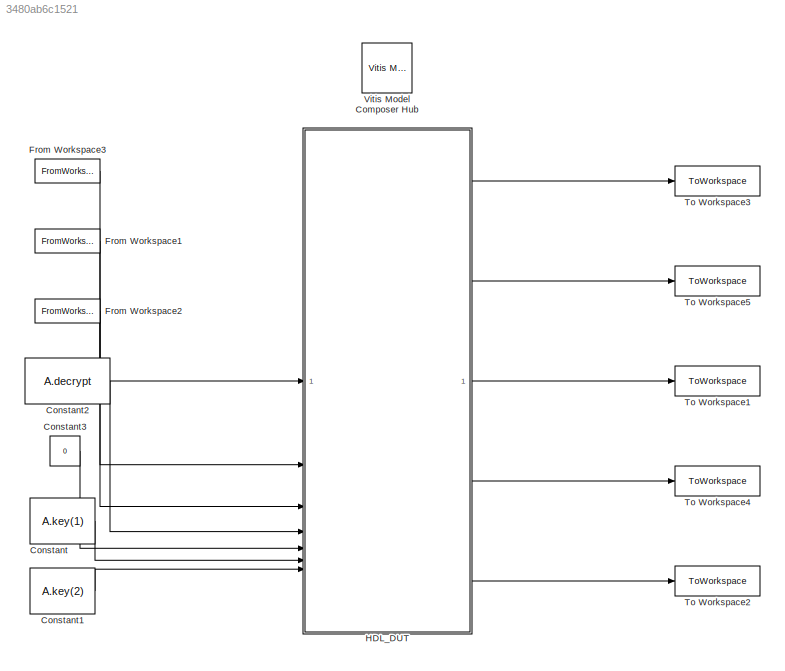
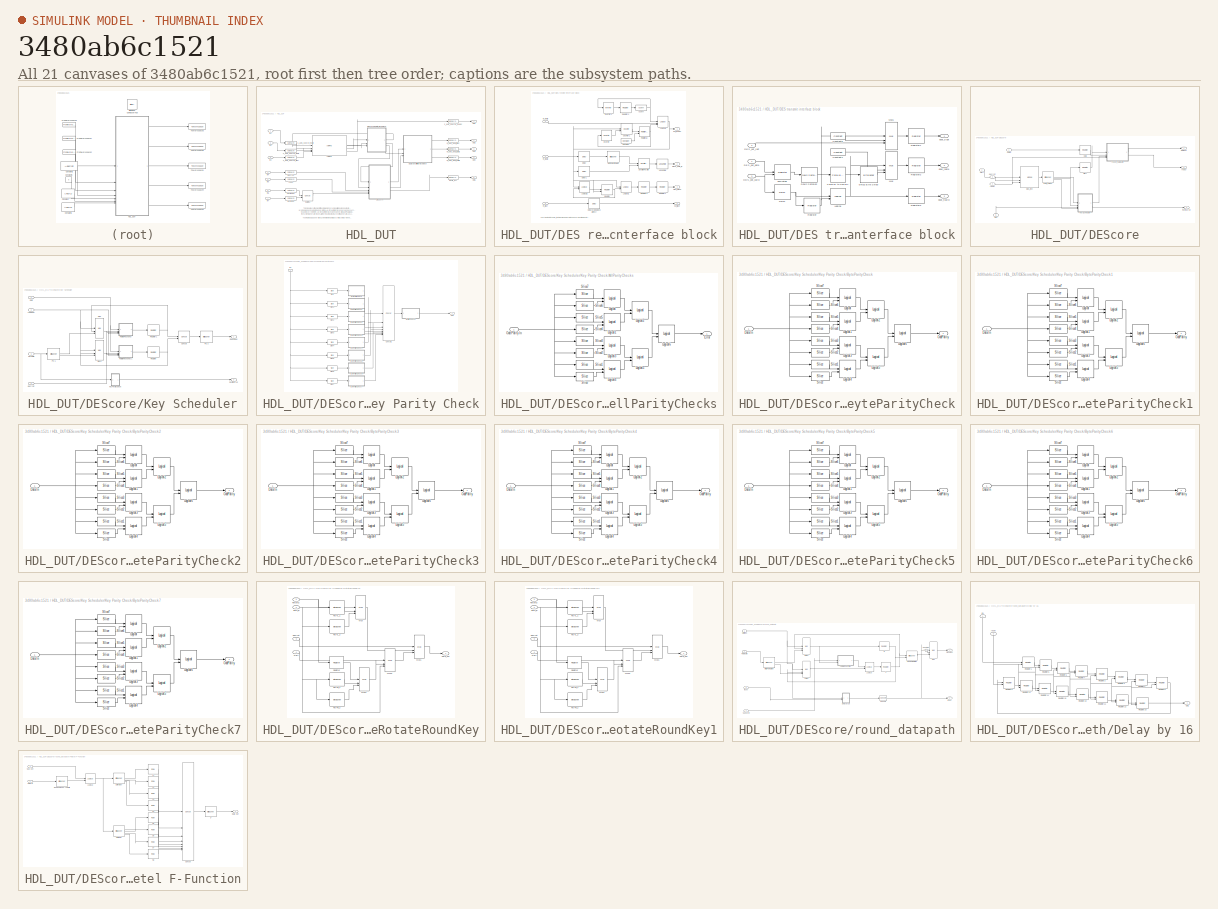
[diagram: thumbnail index - all 21 canvases of the model, root first then tree order]
MODEL slx_3480ab6c1521
KIND model
CONFIG AbsTol = auto
CONFIG EnableMultiTasking = off
CONFIG FixedStep = 1
CONFIG MaxStep = auto
CONFIG MinStep = auto
CONFIG PostLoadFcn = A = DEScfg_axi('$0102040810204080', 'This is a default input - make it your own!', 'encrypt')\n
CONFIG RelTol = 1e-3
CONFIG SampleTimeConstraint = Unconstrained
CONFIG SolverName = FixedStepDiscrete
CONFIG StartTime = 0.0
CONFIG StopTime = A.len*16 + 52
BLOCK [Constant] Constant
  SampleTime = 1
  Value = A.key(1)
BLOCK [Constant] Constant1
  SampleTime = 1
  Value = A.key(2)
BLOCK [Constant] Constant2
  Value = A.decrypt
  VectorParams1D = off
BLOCK [Constant] Constant3
  Value = 0
  VectorParams1D = off
BLOCK [FromWorkspace] From Workspace1
  Interpolate = off
  OutDataTypeStr = uint32
  OutputAfterFinalValue = Setting to zero
  SampleTime = 1
  VariableName = A.M
BLOCK [FromWorkspace] From Workspace2
  Interpolate = off
  OutputAfterFinalValue = Setting to zero
  SampleTime = 1
  VariableName = A.last
BLOCK [FromWorkspace] From Workspace3
  Interpolate = off
  OutputAfterFinalValue = Setting to zero
  SampleTime = 1
  VariableName = A.valid
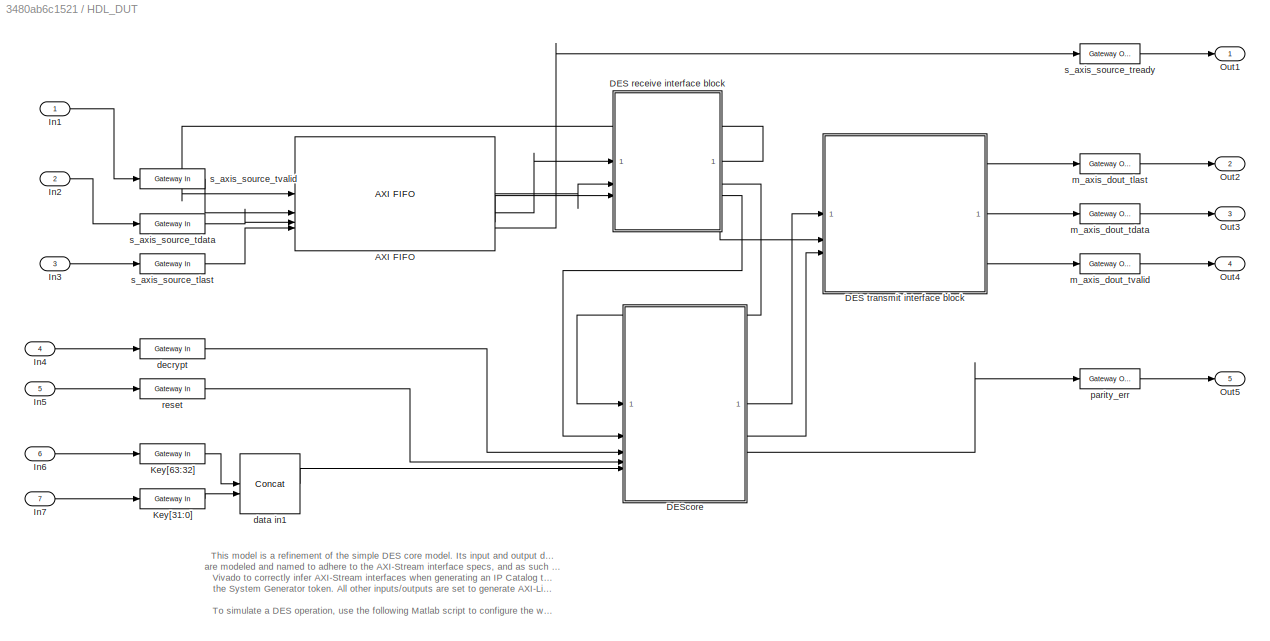
BLOCK [SubSystem] HDL_DUT
BLOCK [Reference] HDL_DUT/AXI FIFO  REF=hdlBasic/AXI FIFO
  SourceBlock = hdlBasic/AXI FIFO
  SourceType = AXI FIFO Block Block
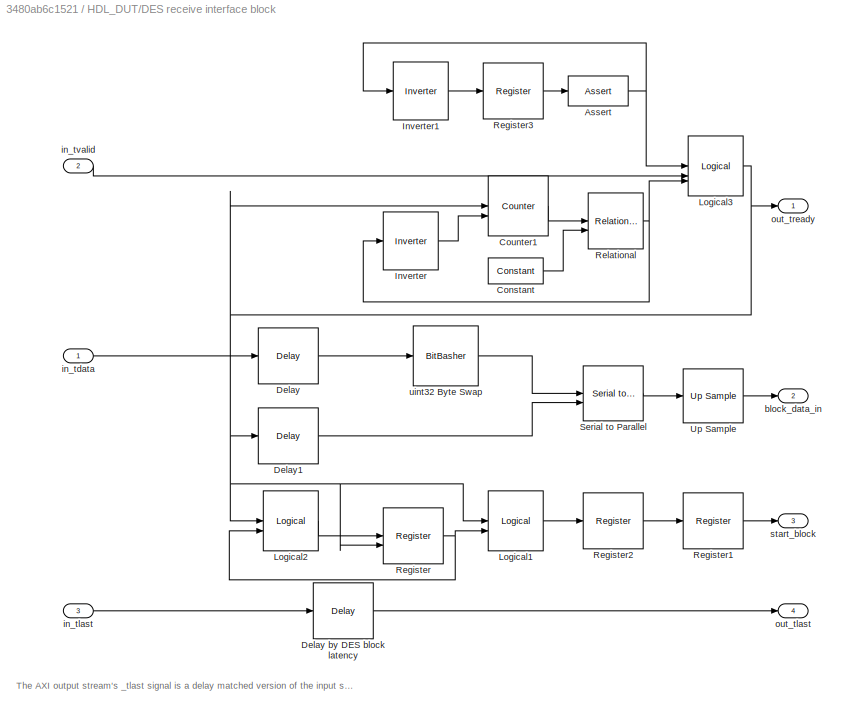
BLOCK [SubSystem] HDL_DUT/DES receive interface block
BLOCK [Reference] HDL_DUT/DES receive interface block/Assert  REF=hdlBasic/Assert
  SourceBlock = hdlBasic/Assert
  SourceType = Assert Block
BLOCK [Reference] HDL_DUT/DES receive interface block/Constant  REF=hdlBasic/Constant
  SourceBlock = hdlBasic/Constant
  SourceType = Constant Block Block
BLOCK [Reference] HDL_DUT/DES receive interface block/Counter1  REF=hdlBasic/Counter
  SourceBlock = hdlBasic/Counter
  SourceType = Counter Block
BLOCK [Reference] HDL_DUT/DES receive interface block/Delay  REF=hdlBasic/Delay
  SourceBlock = hdlBasic/Delay
  SourceType = Delay Block
BLOCK [Reference] HDL_DUT/DES receive interface block/Delay by DES block latency  REF=hdlBasic/Delay
  SourceBlock = hdlBasic/Delay
  SourceType = Delay Block
BLOCK [Reference] HDL_DUT/DES receive interface block/Delay1  REF=hdlBasic/Delay
  SourceBlock = hdlBasic/Delay
  SourceType = Delay Block
BLOCK [Reference] HDL_DUT/DES receive interface block/Inverter  REF=hdlBasic/Inverter
  SourceBlock = hdlBasic/Inverter
  SourceType = Inverter Block
BLOCK [Reference] HDL_DUT/DES receive interface block/Inverter1  REF=hdlBasic/Inverter
  SourceBlock = hdlBasic/Inverter
  SourceType = Inverter Block
BLOCK [Reference] HDL_DUT/DES receive interface block/Logical1  REF=hdlBasic/Logical
  SourceBlock = hdlBasic/Logical
  SourceType = Logical Block Block
BLOCK [Reference] HDL_DUT/DES receive interface block/Logical2  REF=hdlBasic/Logical
  SourceBlock = hdlBasic/Logical
  SourceType = Logical Block Block
BLOCK [Reference] HDL_DUT/DES receive interface block/Logical3  REF=hdlBasic/Logical
  SourceBlock = hdlBasic/Logical
  SourceType = Logical Block Block
BLOCK [Reference] HDL_DUT/DES receive interface block/Register  REF=hdlBasic/Register
  SourceBlock = hdlBasic/Register
  SourceType = Register Block
BLOCK [Reference] HDL_DUT/DES receive interface block/Register1  REF=hdlBasic/Register
  SourceBlock = hdlBasic/Register
  SourceType = Register Block
BLOCK [Reference] HDL_DUT/DES receive interface block/Register2  REF=hdlBasic/Register
  SourceBlock = hdlBasic/Register
  SourceType = Register Block
BLOCK [Reference] HDL_DUT/DES receive interface block/Register3  REF=hdlBasic/Register
  SourceBlock = hdlBasic/Register
  SourceType = Register Block
BLOCK [Reference] HDL_DUT/DES receive interface block/Relational  REF=hdlBasic/Relational
  SourceBlock = hdlBasic/Relational
  SourceType = Arithmetic Relational Operator Block
BLOCK [Reference] HDL_DUT/DES receive interface block/Serial to Parallel  REF=hdlBasic/Serial to Parallel
  SourceBlock = hdlBasic/Serial to Parallel
  SourceType = Serial to Parallel Converter Block
BLOCK [Reference] HDL_DUT/DES receive interface block/Up Sample  REF=hdlBasic/Up Sample
  SourceBlock = hdlBasic/Up Sample
  SourceType = Up Sampler Block
BLOCK [Outport] HDL_DUT/DES receive interface block/block_data_in
  Port = 2
  VectorParamsAs1DForOutWhenUnconnected = off
BLOCK [Inport] HDL_DUT/DES receive interface block/in_tdata
BLOCK [Inport] HDL_DUT/DES receive interface block/in_tlast
  Port = 3
BLOCK [Inport] HDL_DUT/DES receive interface block/in_tvalid
  Port = 2
BLOCK [Outport] HDL_DUT/DES receive interface block/out_tlast
  Port = 4
  VectorParamsAs1DForOutWhenUnconnected = off
BLOCK [Outport] HDL_DUT/DES receive interface block/out_tready
  VectorParamsAs1DForOutWhenUnconnected = off
BLOCK [Outport] HDL_DUT/DES receive interface block/start_block
  Port = 3
  VectorParamsAs1DForOutWhenUnconnected = off
BLOCK [Reference] HDL_DUT/DES receive interface block/uint32 Byte Swap  REF=hdlBasic/BitBasher
  SourceBlock = hdlBasic/BitBasher
  SourceType = BitBasher Block
BLOCK [SubSystem] HDL_DUT/DES transmit interface block
BLOCK [Reference] HDL_DUT/DES transmit interface block/Constant4  REF=hdlBasic/Constant
  SourceBlock = hdlBasic/Constant
  SourceType = Constant Block Block
BLOCK [Reference] HDL_DUT/DES transmit interface block/Constant5  REF=hdlBasic/Constant
  SourceBlock = hdlBasic/Constant
  SourceType = Constant Block Block
BLOCK [Inport] HDL_DUT/DES transmit interface block/DES_out_data
BLOCK [Inport] HDL_DUT/DES transmit interface block/DES_out_last
  Port = 2
BLOCK [Inport] HDL_DUT/DES transmit interface block/DES_out_valid
  Port = 3
BLOCK [Reference] HDL_DUT/DES transmit interface block/Delay  REF=hdlBasic/Delay
  SourceBlock = hdlBasic/Delay
  SourceType = Delay Block
BLOCK [Reference] HDL_DUT/DES transmit interface block/Down Sample2  REF=hdlBasic/Down Sample
  SourceBlock = hdlBasic/Down Sample
  SourceType = Down Sampler Block
BLOCK [Reference] HDL_DUT/DES transmit interface block/Logical  REF=hdlBasic/Logical
  SourceBlock = hdlBasic/Logical
  SourceType = Logical Block Block
BLOCK [Reference] HDL_DUT/DES transmit interface block/Mux  REF=hdlBasic/Mux
  SourceBlock = hdlBasic/Mux
  SourceType = Bus Multiplexer Block
BLOCK [Reference] HDL_DUT/DES transmit interface block/Mux1  REF=hdlBasic/Mux
  SourceBlock = hdlBasic/Mux
  SourceType = Bus Multiplexer Block
BLOCK [Reference] HDL_DUT/DES transmit interface block/Parallel to Serial1  REF=hdlBasic/Parallel to Serial
  SourceBlock = hdlBasic/Parallel to Serial
  SourceType = Parallel to Serial Converter Block
BLOCK [Reference] HDL_DUT/DES transmit interface block/Register  REF=hdlBasic/Register
  SourceBlock = hdlBasic/Register
  SourceType = Register Block
BLOCK [Reference] HDL_DUT/DES transmit interface block/Register1  REF=hdlBasic/Register
  SourceBlock = hdlBasic/Register
  SourceType = Register Block
BLOCK [Reference] HDL_DUT/DES transmit interface block/Register2  REF=hdlBasic/Register
  SourceBlock = hdlBasic/Register
  SourceType = Register Block
BLOCK [Reference] HDL_DUT/DES transmit interface block/Register3  REF=hdlBasic/Register
  SourceBlock = hdlBasic/Register
  SourceType = Register Block
BLOCK [Outport] HDL_DUT/DES transmit interface block/dout_tdata
  Port = 2
  VectorParamsAs1DForOutWhenUnconnected = off
BLOCK [Outport] HDL_DUT/DES transmit interface block/dout_tlast
  VectorParamsAs1DForOutWhenUnconnected = off
BLOCK [Outport] HDL_DUT/DES transmit interface block/dout_tvalid
  Port = 3
  VectorParamsAs1DForOutWhenUnconnected = off
BLOCK [Reference] HDL_DUT/DES transmit interface block/encrypted  REF=hdlBasic/Register
  SourceBlock = hdlBasic/Register
  SourceType = Register Block
BLOCK [Reference] HDL_DUT/DES transmit interface block/uint32 Byte Swap  REF=hdlBasic/BitBasher
  SourceBlock = hdlBasic/BitBasher
  SourceType = BitBasher Block
BLOCK [SubSystem] HDL_DUT/DEScore
BLOCK [Reference] HDL_DUT/DEScore/DES_fsm  REF=hdlBasic/MCode
  SourceBlock = hdlBasic/MCode
  SourceType = MCode
BLOCK [Reference] HDL_DUT/DEScore/Data  REF=hdlBasic/Register
  SourceBlock = hdlBasic/Register
  SourceType = Register Block
BLOCK [Inport] HDL_DUT/DEScore/Data In
BLOCK [Outport] HDL_DUT/DEScore/Data out
  VectorParamsAs1DForOutWhenUnconnected = off
BLOCK [Reference] HDL_DUT/DEScore/FSM_output  REF=hdlBasic/BitBasher
  SourceBlock = hdlBasic/BitBasher
  SourceType = BitBasher Block
BLOCK [Inport] HDL_DUT/DEScore/Key
  NameLocation = right
  Port = 5
BLOCK [SubSystem] HDL_DUT/DEScore/Key Scheduler
BLOCK [Reference] HDL_DUT/DEScore/Key Scheduler/Concat  REF=hdlBasic/Concat
  SourceBlock = hdlBasic/Concat
  SourceType = Bus Concatenator Block
BLOCK [SubSystem] HDL_DUT/DEScore/Key Scheduler/Key Parity Check
BLOCK [SubSystem] HDL_DUT/DEScore/Key Scheduler/Key Parity Check/AllParityChecks
BLOCK [Outport] HDL_DUT/DEScore/Key Scheduler/Key Parity Check/AllParityChecks/Error
  VectorParamsAs1DForOutWhenUnconnected = off
BLOCK [Reference] HDL_DUT/DEScore/Key Scheduler/Key Parity Check/AllParityChecks/Logical  REF=hdlBasic/Logical
  SourceBlock = hdlBasic/Logical
  SourceType = Logical Block Block
BLOCK [Reference] HDL_DUT/DEScore/Key Scheduler/Key Parity Check/AllParityChecks/Logical1  REF=hdlBasic/Logical
  SourceBlock = hdlBasic/Logical
  SourceType = Logical Block Block
BLOCK [Reference] HDL_DUT/DEScore/Key Scheduler/Key Parity Check/AllParityChecks/Logical2  REF=hdlBasic/Logical
  SourceBlock = hdlBasic/Logical
  SourceType = Logical Block Block
BLOCK [Reference] HDL_DUT/DEScore/Key Scheduler/Key Parity Check/AllParityChecks/Logical3  REF=hdlBasic/Logical
  SourceBlock = hdlBasic/Logical
  SourceType = Logical Block Block
BLOCK [Reference] HDL_DUT/DEScore/Key Scheduler/Key Parity Check/AllParityChecks/Logical4  REF=hdlBasic/Logical
  SourceBlock = hdlBasic/Logical
  SourceType = Logical Block Block
BLOCK [Reference] HDL_DUT/DEScore/Key Scheduler/Key Parity Check/AllParityChecks/Logical5  REF=hdlBasic/Logical
  SourceBlock = hdlBasic/Logical
  SourceType = Logical Block Block
BLOCK [Reference] HDL_DUT/DEScore/Key Scheduler/Key Parity Check/AllParityChecks/Logical6  REF=hdlBasic/Logical
  SourceBlock = hdlBasic/Logical
  SourceType = Logical Block Block
BLOCK [Inport] HDL_DUT/DEScore/Key Scheduler/Key Parity Check/AllParityChecks/Odd Parity In
BLOCK [Reference] HDL_DUT/DEScore/Key Scheduler/Key Parity Check/AllParityChecks/Slice  REF=hdlBasic/Slice
  SourceBlock = hdlBasic/Slice
  SourceType = Bit Slice Extractor Block
BLOCK [Reference] HDL_DUT/DEScore/Key Scheduler/Key Parity Check/AllParityChecks/Slice1  REF=hdlBasic/Slice
  SourceBlock = hdlBasic/Slice
  SourceType = Bit Slice Extractor Block
BLOCK [Reference] HDL_DUT/DEScore/Key Scheduler/Key Parity Check/AllParityChecks/Slice2  REF=hdlBasic/Slice
  SourceBlock = hdlBasic/Slice
  SourceType = Bit Slice Extractor Block
BLOCK [Reference] HDL_DUT/DEScore/Key Scheduler/Key Parity Check/AllParityChecks/Slice3  REF=hdlBasic/Slice
  SourceBlock = hdlBasic/Slice
  SourceType = Bit Slice Extractor Block
BLOCK [Reference] HDL_DUT/DEScore/Key Scheduler/Key Parity Check/AllParityChecks/Slice4  REF=hdlBasic/Slice
  SourceBlock = hdlBasic/Slice
  SourceType = Bit Slice Extractor Block
BLOCK [Reference] HDL_DUT/DEScore/Key Scheduler/Key Parity Check/AllParityChecks/Slice5  REF=hdlBasic/Slice
  SourceBlock = hdlBasic/Slice
  SourceType = Bit Slice Extractor Block
BLOCK [Reference] HDL_DUT/DEScore/Key Scheduler/Key Parity Check/AllParityChecks/Slice6  REF=hdlBasic/Slice
  SourceBlock = hdlBasic/Slice
  SourceType = Bit Slice Extractor Block
BLOCK [Reference] HDL_DUT/DEScore/Key Scheduler/Key Parity Check/AllParityChecks/Slice7  REF=hdlBasic/Slice
  SourceBlock = hdlBasic/Slice
  SourceType = Bit Slice Extractor Block
BLOCK [SubSystem] HDL_DUT/DEScore/Key Scheduler/Key Parity Check/ByteParityCheck
BLOCK [Inport] HDL_DUT/DEScore/Key Scheduler/Key Parity Check/ByteParityCheck/Data In
BLOCK [Reference] HDL_DUT/DEScore/Key Scheduler/Key Parity Check/ByteParityCheck/Logical  REF=hdlBasic/Logical
  SourceBlock = hdlBasic/Logical
  SourceType = Logical Block Block
BLOCK [Reference] HDL_DUT/DEScore/Key Scheduler/Key Parity Check/ByteParityCheck/Logical1  REF=hdlBasic/Logical
  SourceBlock = hdlBasic/Logical
  SourceType = Logical Block Block
BLOCK [Reference] HDL_DUT/DEScore/Key Scheduler/Key Parity Check/ByteParityCheck/Logical2  REF=hdlBasic/Logical
  SourceBlock = hdlBasic/Logical
  SourceType = Logical Block Block
BLOCK [Reference] HDL_DUT/DEScore/Key Scheduler/Key Parity Check/ByteParityCheck/Logical3  REF=hdlBasic/Logical
  SourceBlock = hdlBasic/Logical
  SourceType = Logical Block Block
BLOCK [Reference] HDL_DUT/DEScore/Key Scheduler/Key Parity Check/ByteParityCheck/Logical4  REF=hdlBasic/Logical
  SourceBlock = hdlBasic/Logical
  SourceType = Logical Block Block
BLOCK [Reference] HDL_DUT/DEScore/Key Scheduler/Key Parity Check/ByteParityCheck/Logical5  REF=hdlBasic/Logical
  SourceBlock = hdlBasic/Logical
  SourceType = Logical Block Block
BLOCK [Reference] HDL_DUT/DEScore/Key Scheduler/Key Parity Check/ByteParityCheck/Logical6  REF=hdlBasic/Logical
  SourceBlock = hdlBasic/Logical
  SourceType = Logical Block Block
BLOCK [Outport] HDL_DUT/DEScore/Key Scheduler/Key Parity Check/ByteParityCheck/OddParity
  VectorParamsAs1DForOutWhenUnconnected = off
BLOCK [Reference] HDL_DUT/DEScore/Key Scheduler/Key Parity Check/ByteParityCheck/Slice  REF=hdlBasic/Slice
  SourceBlock = hdlBasic/Slice
  SourceType = Bit Slice Extractor Block
BLOCK [Reference] HDL_DUT/DEScore/Key Scheduler/Key Parity Check/ByteParityCheck/Slice1  REF=hdlBasic/Slice
  SourceBlock = hdlBasic/Slice
  SourceType = Bit Slice Extractor Block
BLOCK [Reference] HDL_DUT/DEScore/Key Scheduler/Key Parity Check/ByteParityCheck/Slice2  REF=hdlBasic/Slice
  SourceBlock = hdlBasic/Slice
  SourceType = Bit Slice Extractor Block
BLOCK [Reference] HDL_DUT/DEScore/Key Scheduler/Key Parity Check/ByteParityCheck/Slice3  REF=hdlBasic/Slice
  SourceBlock = hdlBasic/Slice
  SourceType = Bit Slice Extractor Block
BLOCK [Reference] HDL_DUT/DEScore/Key Scheduler/Key Parity Check/ByteParityCheck/Slice4  REF=hdlBasic/Slice
  SourceBlock = hdlBasic/Slice
  SourceType = Bit Slice Extractor Block
BLOCK [Reference] HDL_DUT/DEScore/Key Scheduler/Key Parity Check/ByteParityCheck/Slice5  REF=hdlBasic/Slice
  SourceBlock = hdlBasic/Slice
  SourceType = Bit Slice Extractor Block
BLOCK [Reference] HDL_DUT/DEScore/Key Scheduler/Key Parity Check/ByteParityCheck/Slice6  REF=hdlBasic/Slice
  SourceBlock = hdlBasic/Slice
  SourceType = Bit Slice Extractor Block
BLOCK [Reference] HDL_DUT/DEScore/Key Scheduler/Key Parity Check/ByteParityCheck/Slice7  REF=hdlBasic/Slice
  SourceBlock = hdlBasic/Slice
  SourceType = Bit Slice Extractor Block
BLOCK [SubSystem] HDL_DUT/DEScore/Key Scheduler/Key Parity Check/ByteParityCheck1
BLOCK [Inport] HDL_DUT/DEScore/Key Scheduler/Key Parity Check/ByteParityCheck1/Data In
BLOCK [Reference] HDL_DUT/DEScore/Key Scheduler/Key Parity Check/ByteParityCheck1/Logical  REF=hdlBasic/Logical
  SourceBlock = hdlBasic/Logical
  SourceType = Logical Block Block
BLOCK [Reference] HDL_DUT/DEScore/Key Scheduler/Key Parity Check/ByteParityCheck1/Logical1  REF=hdlBasic/Logical
  SourceBlock = hdlBasic/Logical
  SourceType = Logical Block Block
BLOCK [Reference] HDL_DUT/DEScore/Key Scheduler/Key Parity Check/ByteParityCheck1/Logical2  REF=hdlBasic/Logical
  SourceBlock = hdlBasic/Logical
  SourceType = Logical Block Block
BLOCK [Reference] HDL_DUT/DEScore/Key Scheduler/Key Parity Check/ByteParityCheck1/Logical3  REF=hdlBasic/Logical
  SourceBlock = hdlBasic/Logical
  SourceType = Logical Block Block
BLOCK [Reference] HDL_DUT/DEScore/Key Scheduler/Key Parity Check/ByteParityCheck1/Logical4  REF=hdlBasic/Logical
  SourceBlock = hdlBasic/Logical
  SourceType = Logical Block Block
BLOCK [Reference] HDL_DUT/DEScore/Key Scheduler/Key Parity Check/ByteParityCheck1/Logical5  REF=hdlBasic/Logical
  SourceBlock = hdlBasic/Logical
  SourceType = Logical Block Block
BLOCK [Reference] HDL_DUT/DEScore/Key Scheduler/Key Parity Check/ByteParityCheck1/Logical6  REF=hdlBasic/Logical
  SourceBlock = hdlBasic/Logical
  SourceType = Logical Block Block
BLOCK [Outport] HDL_DUT/DEScore/Key Scheduler/Key Parity Check/ByteParityCheck1/OddParity
  VectorParamsAs1DForOutWhenUnconnected = off
BLOCK [Reference] HDL_DUT/DEScore/Key Scheduler/Key Parity Check/ByteParityCheck1/Slice  REF=hdlBasic/Slice
  SourceBlock = hdlBasic/Slice
  SourceType = Bit Slice Extractor Block
BLOCK [Reference] HDL_DUT/DEScore/Key Scheduler/Key Parity Check/ByteParityCheck1/Slice1  REF=hdlBasic/Slice
  SourceBlock = hdlBasic/Slice
  SourceType = Bit Slice Extractor Block
BLOCK [Reference] HDL_DUT/DEScore/Key Scheduler/Key Parity Check/ByteParityCheck1/Slice2  REF=hdlBasic/Slice
  SourceBlock = hdlBasic/Slice
  SourceType = Bit Slice Extractor Block
BLOCK [Reference] HDL_DUT/DEScore/Key Scheduler/Key Parity Check/ByteParityCheck1/Slice3  REF=hdlBasic/Slice
  SourceBlock = hdlBasic/Slice
  SourceType = Bit Slice Extractor Block
BLOCK [Reference] HDL_DUT/DEScore/Key Scheduler/Key Parity Check/ByteParityCheck1/Slice4  REF=hdlBasic/Slice
  SourceBlock = hdlBasic/Slice
  SourceType = Bit Slice Extractor Block
BLOCK [Reference] HDL_DUT/DEScore/Key Scheduler/Key Parity Check/ByteParityCheck1/Slice5  REF=hdlBasic/Slice
  SourceBlock = hdlBasic/Slice
  SourceType = Bit Slice Extractor Block
BLOCK [Reference] HDL_DUT/DEScore/Key Scheduler/Key Parity Check/ByteParityCheck1/Slice6  REF=hdlBasic/Slice
  SourceBlock = hdlBasic/Slice
  SourceType = Bit Slice Extractor Block
BLOCK [Reference] HDL_DUT/DEScore/Key Scheduler/Key Parity Check/ByteParityCheck1/Slice7  REF=hdlBasic/Slice
  SourceBlock = hdlBasic/Slice
  SourceType = Bit Slice Extractor Block
BLOCK [SubSystem] HDL_DUT/DEScore/Key Scheduler/Key Parity Check/ByteParityCheck2
BLOCK [Inport] HDL_DUT/DEScore/Key Scheduler/Key Parity Check/ByteParityCheck2/Data In
BLOCK [Reference] HDL_DUT/DEScore/Key Scheduler/Key Parity Check/ByteParityCheck2/Logical  REF=hdlBasic/Logical
  SourceBlock = hdlBasic/Logical
  SourceType = Logical Block Block
BLOCK [Reference] HDL_DUT/DEScore/Key Scheduler/Key Parity Check/ByteParityCheck2/Logical1  REF=hdlBasic/Logical
  SourceBlock = hdlBasic/Logical
  SourceType = Logical Block Block
BLOCK [Reference] HDL_DUT/DEScore/Key Scheduler/Key Parity Check/ByteParityCheck2/Logical2  REF=hdlBasic/Logical
  SourceBlock = hdlBasic/Logical
  SourceType = Logical Block Block
BLOCK [Reference] HDL_DUT/DEScore/Key Scheduler/Key Parity Check/ByteParityCheck2/Logical3  REF=hdlBasic/Logical
  SourceBlock = hdlBasic/Logical
  SourceType = Logical Block Block
BLOCK [Reference] HDL_DUT/DEScore/Key Scheduler/Key Parity Check/ByteParityCheck2/Logical4  REF=hdlBasic/Logical
  SourceBlock = hdlBasic/Logical
  SourceType = Logical Block Block
BLOCK [Reference] HDL_DUT/DEScore/Key Scheduler/Key Parity Check/ByteParityCheck2/Logical5  REF=hdlBasic/Logical
  SourceBlock = hdlBasic/Logical
  SourceType = Logical Block Block
BLOCK [Reference] HDL_DUT/DEScore/Key Scheduler/Key Parity Check/ByteParityCheck2/Logical6  REF=hdlBasic/Logical
  SourceBlock = hdlBasic/Logical
  SourceType = Logical Block Block
BLOCK [Outport] HDL_DUT/DEScore/Key Scheduler/Key Parity Check/ByteParityCheck2/OddParity
  VectorParamsAs1DForOutWhenUnconnected = off
BLOCK [Reference] HDL_DUT/DEScore/Key Scheduler/Key Parity Check/ByteParityCheck2/Slice  REF=hdlBasic/Slice
  SourceBlock = hdlBasic/Slice
  SourceType = Bit Slice Extractor Block
BLOCK [Reference] HDL_DUT/DEScore/Key Scheduler/Key Parity Check/ByteParityCheck2/Slice1  REF=hdlBasic/Slice
  SourceBlock = hdlBasic/Slice
  SourceType = Bit Slice Extractor Block
BLOCK [Reference] HDL_DUT/DEScore/Key Scheduler/Key Parity Check/ByteParityCheck2/Slice2  REF=hdlBasic/Slice
  SourceBlock = hdlBasic/Slice
  SourceType = Bit Slice Extractor Block
BLOCK [Reference] HDL_DUT/DEScore/Key Scheduler/Key Parity Check/ByteParityCheck2/Slice3  REF=hdlBasic/Slice
  SourceBlock = hdlBasic/Slice
  SourceType = Bit Slice Extractor Block
BLOCK [Reference] HDL_DUT/DEScore/Key Scheduler/Key Parity Check/ByteParityCheck2/Slice4  REF=hdlBasic/Slice
  SourceBlock = hdlBasic/Slice
  SourceType = Bit Slice Extractor Block
BLOCK [Reference] HDL_DUT/DEScore/Key Scheduler/Key Parity Check/ByteParityCheck2/Slice5  REF=hdlBasic/Slice
  SourceBlock = hdlBasic/Slice
  SourceType = Bit Slice Extractor Block
BLOCK [Reference] HDL_DUT/DEScore/Key Scheduler/Key Parity Check/ByteParityCheck2/Slice6  REF=hdlBasic/Slice
  SourceBlock = hdlBasic/Slice
  SourceType = Bit Slice Extractor Block
BLOCK [Reference] HDL_DUT/DEScore/Key Scheduler/Key Parity Check/ByteParityCheck2/Slice7  REF=hdlBasic/Slice
  SourceBlock = hdlBasic/Slice
  SourceType = Bit Slice Extractor Block
BLOCK [SubSystem] HDL_DUT/DEScore/Key Scheduler/Key Parity Check/ByteParityCheck3
BLOCK [Inport] HDL_DUT/DEScore/Key Scheduler/Key Parity Check/ByteParityCheck3/Data In
BLOCK [Reference] HDL_DUT/DEScore/Key Scheduler/Key Parity Check/ByteParityCheck3/Logical  REF=hdlBasic/Logical
  SourceBlock = hdlBasic/Logical
  SourceType = Logical Block Block
BLOCK [Reference] HDL_DUT/DEScore/Key Scheduler/Key Parity Check/ByteParityCheck3/Logical1  REF=hdlBasic/Logical
  SourceBlock = hdlBasic/Logical
  SourceType = Logical Block Block
BLOCK [Reference] HDL_DUT/DEScore/Key Scheduler/Key Parity Check/ByteParityCheck3/Logical2  REF=hdlBasic/Logical
  SourceBlock = hdlBasic/Logical
  SourceType = Logical Block Block
BLOCK [Reference] HDL_DUT/DEScore/Key Scheduler/Key Parity Check/ByteParityCheck3/Logical3  REF=hdlBasic/Logical
  SourceBlock = hdlBasic/Logical
  SourceType = Logical Block Block
BLOCK [Reference] HDL_DUT/DEScore/Key Scheduler/Key Parity Check/ByteParityCheck3/Logical4  REF=hdlBasic/Logical
  SourceBlock = hdlBasic/Logical
  SourceType = Logical Block Block
BLOCK [Reference] HDL_DUT/DEScore/Key Scheduler/Key Parity Check/ByteParityCheck3/Logical5  REF=hdlBasic/Logical
  SourceBlock = hdlBasic/Logical
  SourceType = Logical Block Block
BLOCK [Reference] HDL_DUT/DEScore/Key Scheduler/Key Parity Check/ByteParityCheck3/Logical6  REF=hdlBasic/Logical
  SourceBlock = hdlBasic/Logical
  SourceType = Logical Block Block
BLOCK [Outport] HDL_DUT/DEScore/Key Scheduler/Key Parity Check/ByteParityCheck3/OddParity
  VectorParamsAs1DForOutWhenUnconnected = off
BLOCK [Reference] HDL_DUT/DEScore/Key Scheduler/Key Parity Check/ByteParityCheck3/Slice  REF=hdlBasic/Slice
  SourceBlock = hdlBasic/Slice
  SourceType = Bit Slice Extractor Block
BLOCK [Reference] HDL_DUT/DEScore/Key Scheduler/Key Parity Check/ByteParityCheck3/Slice1  REF=hdlBasic/Slice
  SourceBlock = hdlBasic/Slice
  SourceType = Bit Slice Extractor Block
BLOCK [Reference] HDL_DUT/DEScore/Key Scheduler/Key Parity Check/ByteParityCheck3/Slice2  REF=hdlBasic/Slice
  SourceBlock = hdlBasic/Slice
  SourceType = Bit Slice Extractor Block
BLOCK [Reference] HDL_DUT/DEScore/Key Scheduler/Key Parity Check/ByteParityCheck3/Slice3  REF=hdlBasic/Slice
  SourceBlock = hdlBasic/Slice
  SourceType = Bit Slice Extractor Block
BLOCK [Reference] HDL_DUT/DEScore/Key Scheduler/Key Parity Check/ByteParityCheck3/Slice4  REF=hdlBasic/Slice
  SourceBlock = hdlBasic/Slice
  SourceType = Bit Slice Extractor Block
BLOCK [Reference] HDL_DUT/DEScore/Key Scheduler/Key Parity Check/ByteParityCheck3/Slice5  REF=hdlBasic/Slice
  SourceBlock = hdlBasic/Slice
  SourceType = Bit Slice Extractor Block
BLOCK [Reference] HDL_DUT/DEScore/Key Scheduler/Key Parity Check/ByteParityCheck3/Slice6  REF=hdlBasic/Slice
  SourceBlock = hdlBasic/Slice
  SourceType = Bit Slice Extractor Block
BLOCK [Reference] HDL_DUT/DEScore/Key Scheduler/Key Parity Check/ByteParityCheck3/Slice7  REF=hdlBasic/Slice
  SourceBlock = hdlBasic/Slice
  SourceType = Bit Slice Extractor Block
BLOCK [SubSystem] HDL_DUT/DEScore/Key Scheduler/Key Parity Check/ByteParityCheck4
BLOCK [Inport] HDL_DUT/DEScore/Key Scheduler/Key Parity Check/ByteParityCheck4/Data In
BLOCK [Reference] HDL_DUT/DEScore/Key Scheduler/Key Parity Check/ByteParityCheck4/Logical  REF=hdlBasic/Logical
  SourceBlock = hdlBasic/Logical
  SourceType = Logical Block Block
BLOCK [Reference] HDL_DUT/DEScore/Key Scheduler/Key Parity Check/ByteParityCheck4/Logical1  REF=hdlBasic/Logical
  SourceBlock = hdlBasic/Logical
  SourceType = Logical Block Block
BLOCK [Reference] HDL_DUT/DEScore/Key Scheduler/Key Parity Check/ByteParityCheck4/Logical2  REF=hdlBasic/Logical
  SourceBlock = hdlBasic/Logical
  SourceType = Logical Block Block
BLOCK [Reference] HDL_DUT/DEScore/Key Scheduler/Key Parity Check/ByteParityCheck4/Logical3  REF=hdlBasic/Logical
  SourceBlock = hdlBasic/Logical
  SourceType = Logical Block Block
BLOCK [Reference] HDL_DUT/DEScore/Key Scheduler/Key Parity Check/ByteParityCheck4/Logical4  REF=hdlBasic/Logical
  SourceBlock = hdlBasic/Logical
  SourceType = Logical Block Block
BLOCK [Reference] HDL_DUT/DEScore/Key Scheduler/Key Parity Check/ByteParityCheck4/Logical5  REF=hdlBasic/Logical
  SourceBlock = hdlBasic/Logical
  SourceType = Logical Block Block
BLOCK [Reference] HDL_DUT/DEScore/Key Scheduler/Key Parity Check/ByteParityCheck4/Logical6  REF=hdlBasic/Logical
  SourceBlock = hdlBasic/Logical
  SourceType = Logical Block Block
BLOCK [Outport] HDL_DUT/DEScore/Key Scheduler/Key Parity Check/ByteParityCheck4/OddParity
  VectorParamsAs1DForOutWhenUnconnected = off
BLOCK [Reference] HDL_DUT/DEScore/Key Scheduler/Key Parity Check/ByteParityCheck4/Slice  REF=hdlBasic/Slice
  SourceBlock = hdlBasic/Slice
  SourceType = Bit Slice Extractor Block
BLOCK [Reference] HDL_DUT/DEScore/Key Scheduler/Key Parity Check/ByteParityCheck4/Slice1  REF=hdlBasic/Slice
  SourceBlock = hdlBasic/Slice
  SourceType = Bit Slice Extractor Block
BLOCK [Reference] HDL_DUT/DEScore/Key Scheduler/Key Parity Check/ByteParityCheck4/Slice2  REF=hdlBasic/Slice
  SourceBlock = hdlBasic/Slice
  SourceType = Bit Slice Extractor Block
BLOCK [Reference] HDL_DUT/DEScore/Key Scheduler/Key Parity Check/ByteParityCheck4/Slice3  REF=hdlBasic/Slice
  SourceBlock = hdlBasic/Slice
  SourceType = Bit Slice Extractor Block
BLOCK [Reference] HDL_DUT/DEScore/Key Scheduler/Key Parity Check/ByteParityCheck4/Slice4  REF=hdlBasic/Slice
  SourceBlock = hdlBasic/Slice
  SourceType = Bit Slice Extractor Block
BLOCK [Reference] HDL_DUT/DEScore/Key Scheduler/Key Parity Check/ByteParityCheck4/Slice5  REF=hdlBasic/Slice
  SourceBlock = hdlBasic/Slice
  SourceType = Bit Slice Extractor Block
BLOCK [Reference] HDL_DUT/DEScore/Key Scheduler/Key Parity Check/ByteParityCheck4/Slice6  REF=hdlBasic/Slice
  SourceBlock = hdlBasic/Slice
  SourceType = Bit Slice Extractor Block
BLOCK [Reference] HDL_DUT/DEScore/Key Scheduler/Key Parity Check/ByteParityCheck4/Slice7  REF=hdlBasic/Slice
  SourceBlock = hdlBasic/Slice
  SourceType = Bit Slice Extractor Block
BLOCK [SubSystem] HDL_DUT/DEScore/Key Scheduler/Key Parity Check/ByteParityCheck5
BLOCK [Inport] HDL_DUT/DEScore/Key Scheduler/Key Parity Check/ByteParityCheck5/Data In
BLOCK [Reference] HDL_DUT/DEScore/Key Scheduler/Key Parity Check/ByteParityCheck5/Logical  REF=hdlBasic/Logical
  SourceBlock = hdlBasic/Logical
  SourceType = Logical Block Block
BLOCK [Reference] HDL_DUT/DEScore/Key Scheduler/Key Parity Check/ByteParityCheck5/Logical1  REF=hdlBasic/Logical
  SourceBlock = hdlBasic/Logical
  SourceType = Logical Block Block
BLOCK [Reference] HDL_DUT/DEScore/Key Scheduler/Key Parity Check/ByteParityCheck5/Logical2  REF=hdlBasic/Logical
  SourceBlock = hdlBasic/Logical
  SourceType = Logical Block Block
BLOCK [Reference] HDL_DUT/DEScore/Key Scheduler/Key Parity Check/ByteParityCheck5/Logical3  REF=hdlBasic/Logical
  SourceBlock = hdlBasic/Logical
  SourceType = Logical Block Block
BLOCK [Reference] HDL_DUT/DEScore/Key Scheduler/Key Parity Check/ByteParityCheck5/Logical4  REF=hdlBasic/Logical
  SourceBlock = hdlBasic/Logical
  SourceType = Logical Block Block
BLOCK [Reference] HDL_DUT/DEScore/Key Scheduler/Key Parity Check/ByteParityCheck5/Logical5  REF=hdlBasic/Logical
  SourceBlock = hdlBasic/Logical
  SourceType = Logical Block Block
BLOCK [Reference] HDL_DUT/DEScore/Key Scheduler/Key Parity Check/ByteParityCheck5/Logical6  REF=hdlBasic/Logical
  SourceBlock = hdlBasic/Logical
  SourceType = Logical Block Block
BLOCK [Outport] HDL_DUT/DEScore/Key Scheduler/Key Parity Check/ByteParityCheck5/OddParity
  VectorParamsAs1DForOutWhenUnconnected = off
BLOCK [Reference] HDL_DUT/DEScore/Key Scheduler/Key Parity Check/ByteParityCheck5/Slice  REF=hdlBasic/Slice
  SourceBlock = hdlBasic/Slice
  SourceType = Bit Slice Extractor Block
BLOCK [Reference] HDL_DUT/DEScore/Key Scheduler/Key Parity Check/ByteParityCheck5/Slice1  REF=hdlBasic/Slice
  SourceBlock = hdlBasic/Slice
  SourceType = Bit Slice Extractor Block
BLOCK [Reference] HDL_DUT/DEScore/Key Scheduler/Key Parity Check/ByteParityCheck5/Slice2  REF=hdlBasic/Slice
  SourceBlock = hdlBasic/Slice
  SourceType = Bit Slice Extractor Block
BLOCK [Reference] HDL_DUT/DEScore/Key Scheduler/Key Parity Check/ByteParityCheck5/Slice3  REF=hdlBasic/Slice
  SourceBlock = hdlBasic/Slice
  SourceType = Bit Slice Extractor Block
BLOCK [Reference] HDL_DUT/DEScore/Key Scheduler/Key Parity Check/ByteParityCheck5/Slice4  REF=hdlBasic/Slice
  SourceBlock = hdlBasic/Slice
  SourceType = Bit Slice Extractor Block
BLOCK [Reference] HDL_DUT/DEScore/Key Scheduler/Key Parity Check/ByteParityCheck5/Slice5  REF=hdlBasic/Slice
  SourceBlock = hdlBasic/Slice
  SourceType = Bit Slice Extractor Block
BLOCK [Reference] HDL_DUT/DEScore/Key Scheduler/Key Parity Check/ByteParityCheck5/Slice6  REF=hdlBasic/Slice
  SourceBlock = hdlBasic/Slice
  SourceType = Bit Slice Extractor Block
BLOCK [Reference] HDL_DUT/DEScore/Key Scheduler/Key Parity Check/ByteParityCheck5/Slice7  REF=hdlBasic/Slice
  SourceBlock = hdlBasic/Slice
  SourceType = Bit Slice Extractor Block
BLOCK [SubSystem] HDL_DUT/DEScore/Key Scheduler/Key Parity Check/ByteParityCheck6
BLOCK [Inport] HDL_DUT/DEScore/Key Scheduler/Key Parity Check/ByteParityCheck6/Data In
BLOCK [Reference] HDL_DUT/DEScore/Key Scheduler/Key Parity Check/ByteParityCheck6/Logical  REF=hdlBasic/Logical
  SourceBlock = hdlBasic/Logical
  SourceType = Logical Block Block
BLOCK [Reference] HDL_DUT/DEScore/Key Scheduler/Key Parity Check/ByteParityCheck6/Logical1  REF=hdlBasic/Logical
  SourceBlock = hdlBasic/Logical
  SourceType = Logical Block Block
BLOCK [Reference] HDL_DUT/DEScore/Key Scheduler/Key Parity Check/ByteParityCheck6/Logical2  REF=hdlBasic/Logical
  SourceBlock = hdlBasic/Logical
  SourceType = Logical Block Block
BLOCK [Reference] HDL_DUT/DEScore/Key Scheduler/Key Parity Check/ByteParityCheck6/Logical3  REF=hdlBasic/Logical
  SourceBlock = hdlBasic/Logical
  SourceType = Logical Block Block
BLOCK [Reference] HDL_DUT/DEScore/Key Scheduler/Key Parity Check/ByteParityCheck6/Logical4  REF=hdlBasic/Logical
  SourceBlock = hdlBasic/Logical
  SourceType = Logical Block Block
BLOCK [Reference] HDL_DUT/DEScore/Key Scheduler/Key Parity Check/ByteParityCheck6/Logical5  REF=hdlBasic/Logical
  SourceBlock = hdlBasic/Logical
  SourceType = Logical Block Block
BLOCK [Reference] HDL_DUT/DEScore/Key Scheduler/Key Parity Check/ByteParityCheck6/Logical6  REF=hdlBasic/Logical
  SourceBlock = hdlBasic/Logical
  SourceType = Logical Block Block
BLOCK [Outport] HDL_DUT/DEScore/Key Scheduler/Key Parity Check/ByteParityCheck6/OddParity
  VectorParamsAs1DForOutWhenUnconnected = off
BLOCK [Reference] HDL_DUT/DEScore/Key Scheduler/Key Parity Check/ByteParityCheck6/Slice  REF=hdlBasic/Slice
  SourceBlock = hdlBasic/Slice
  SourceType = Bit Slice Extractor Block
BLOCK [Reference] HDL_DUT/DEScore/Key Scheduler/Key Parity Check/ByteParityCheck6/Slice1  REF=hdlBasic/Slice
  SourceBlock = hdlBasic/Slice
  SourceType = Bit Slice Extractor Block
BLOCK [Reference] HDL_DUT/DEScore/Key Scheduler/Key Parity Check/ByteParityCheck6/Slice2  REF=hdlBasic/Slice
  SourceBlock = hdlBasic/Slice
  SourceType = Bit Slice Extractor Block
BLOCK [Reference] HDL_DUT/DEScore/Key Scheduler/Key Parity Check/ByteParityCheck6/Slice3  REF=hdlBasic/Slice
  SourceBlock = hdlBasic/Slice
  SourceType = Bit Slice Extractor Block
BLOCK [Reference] HDL_DUT/DEScore/Key Scheduler/Key Parity Check/ByteParityCheck6/Slice4  REF=hdlBasic/Slice
  SourceBlock = hdlBasic/Slice
  SourceType = Bit Slice Extractor Block
BLOCK [Reference] HDL_DUT/DEScore/Key Scheduler/Key Parity Check/ByteParityCheck6/Slice5  REF=hdlBasic/Slice
  SourceBlock = hdlBasic/Slice
  SourceType = Bit Slice Extractor Block
BLOCK [Reference] HDL_DUT/DEScore/Key Scheduler/Key Parity Check/ByteParityCheck6/Slice6  REF=hdlBasic/Slice
  SourceBlock = hdlBasic/Slice
  SourceType = Bit Slice Extractor Block
BLOCK [Reference] HDL_DUT/DEScore/Key Scheduler/Key Parity Check/ByteParityCheck6/Slice7  REF=hdlBasic/Slice
  SourceBlock = hdlBasic/Slice
  SourceType = Bit Slice Extractor Block
BLOCK [SubSystem] HDL_DUT/DEScore/Key Scheduler/Key Parity Check/ByteParityCheck7
BLOCK [Inport] HDL_DUT/DEScore/Key Scheduler/Key Parity Check/ByteParityCheck7/Data In
BLOCK [Reference] HDL_DUT/DEScore/Key Scheduler/Key Parity Check/ByteParityCheck7/Logical  REF=hdlBasic/Logical
  SourceBlock = hdlBasic/Logical
  SourceType = Logical Block Block
BLOCK [Reference] HDL_DUT/DEScore/Key Scheduler/Key Parity Check/ByteParityCheck7/Logical1  REF=hdlBasic/Logical
  SourceBlock = hdlBasic/Logical
  SourceType = Logical Block Block
BLOCK [Reference] HDL_DUT/DEScore/Key Scheduler/Key Parity Check/ByteParityCheck7/Logical2  REF=hdlBasic/Logical
  SourceBlock = hdlBasic/Logical
  SourceType = Logical Block Block
BLOCK [Reference] HDL_DUT/DEScore/Key Scheduler/Key Parity Check/ByteParityCheck7/Logical3  REF=hdlBasic/Logical
  SourceBlock = hdlBasic/Logical
  SourceType = Logical Block Block
BLOCK [Reference] HDL_DUT/DEScore/Key Scheduler/Key Parity Check/ByteParityCheck7/Logical4  REF=hdlBasic/Logical
  SourceBlock = hdlBasic/Logical
  SourceType = Logical Block Block
BLOCK [Reference] HDL_DUT/DEScore/Key Scheduler/Key Parity Check/ByteParityCheck7/Logical5  REF=hdlBasic/Logical
  SourceBlock = hdlBasic/Logical
  SourceType = Logical Block Block
BLOCK [Reference] HDL_DUT/DEScore/Key Scheduler/Key Parity Check/ByteParityCheck7/Logical6  REF=hdlBasic/Logical
  SourceBlock = hdlBasic/Logical
  SourceType = Logical Block Block
BLOCK [Outport] HDL_DUT/DEScore/Key Scheduler/Key Parity Check/ByteParityCheck7/OddParity
  VectorParamsAs1DForOutWhenUnconnected = off
BLOCK [Reference] HDL_DUT/DEScore/Key Scheduler/Key Parity Check/ByteParityCheck7/Slice  REF=hdlBasic/Slice
  SourceBlock = hdlBasic/Slice
  SourceType = Bit Slice Extractor Block
BLOCK [Reference] HDL_DUT/DEScore/Key Scheduler/Key Parity Check/ByteParityCheck7/Slice1  REF=hdlBasic/Slice
  SourceBlock = hdlBasic/Slice
  SourceType = Bit Slice Extractor Block
BLOCK [Reference] HDL_DUT/DEScore/Key Scheduler/Key Parity Check/ByteParityCheck7/Slice2  REF=hdlBasic/Slice
  SourceBlock = hdlBasic/Slice
  SourceType = Bit Slice Extractor Block
BLOCK [Reference] HDL_DUT/DEScore/Key Scheduler/Key Parity Check/ByteParityCheck7/Slice3  REF=hdlBasic/Slice
  SourceBlock = hdlBasic/Slice
  SourceType = Bit Slice Extractor Block
BLOCK [Reference] HDL_DUT/DEScore/Key Scheduler/Key Parity Check/ByteParityCheck7/Slice4  REF=hdlBasic/Slice
  SourceBlock = hdlBasic/Slice
  SourceType = Bit Slice Extractor Block
BLOCK [Reference] HDL_DUT/DEScore/Key Scheduler/Key Parity Check/ByteParityCheck7/Slice5  REF=hdlBasic/Slice
  SourceBlock = hdlBasic/Slice
  SourceType = Bit Slice Extractor Block
BLOCK [Reference] HDL_DUT/DEScore/Key Scheduler/Key Parity Check/ByteParityCheck7/Slice6  REF=hdlBasic/Slice
  SourceBlock = hdlBasic/Slice
  SourceType = Bit Slice Extractor Block
BLOCK [Reference] HDL_DUT/DEScore/Key Scheduler/Key Parity Check/ByteParityCheck7/Slice7  REF=hdlBasic/Slice
  SourceBlock = hdlBasic/Slice
  SourceType = Bit Slice Extractor Block
BLOCK [Reference] HDL_DUT/DEScore/Key Scheduler/Key Parity Check/Concat1  REF=hdlBasic/Concat
  SourceBlock = hdlBasic/Concat
  SourceType = Bus Concatenator Block
BLOCK [Inport] HDL_DUT/DEScore/Key Scheduler/Key Parity Check/In1
  NameLocation = right
BLOCK [Outport] HDL_DUT/DEScore/Key Scheduler/Key Parity Check/Out1
  VectorParamsAs1DForOutWhenUnconnected = off
BLOCK [Reference] HDL_DUT/DEScore/Key Scheduler/Key Parity Check/Slice  REF=hdlBasic/Slice
  SourceBlock = hdlBasic/Slice
  SourceType = Bit Slice Extractor Block
BLOCK [Reference] HDL_DUT/DEScore/Key Scheduler/Key Parity Check/Slice1  REF=hdlBasic/Slice
  SourceBlock = hdlBasic/Slice
  SourceType = Bit Slice Extractor Block
BLOCK [Reference] HDL_DUT/DEScore/Key Scheduler/Key Parity Check/Slice2  REF=hdlBasic/Slice
  SourceBlock = hdlBasic/Slice
  SourceType = Bit Slice Extractor Block
BLOCK [Reference] HDL_DUT/DEScore/Key Scheduler/Key Parity Check/Slice3  REF=hdlBasic/Slice
  SourceBlock = hdlBasic/Slice
  SourceType = Bit Slice Extractor Block
BLOCK [Reference] HDL_DUT/DEScore/Key Scheduler/Key Parity Check/Slice4  REF=hdlBasic/Slice
  SourceBlock = hdlBasic/Slice
  SourceType = Bit Slice Extractor Block
BLOCK [Reference] HDL_DUT/DEScore/Key Scheduler/Key Parity Check/Slice5  REF=hdlBasic/Slice
  SourceBlock = hdlBasic/Slice
  SourceType = Bit Slice Extractor Block
BLOCK [Reference] HDL_DUT/DEScore/Key Scheduler/Key Parity Check/Slice6  REF=hdlBasic/Slice
  SourceBlock = hdlBasic/Slice
  SourceType = Bit Slice Extractor Block
BLOCK [Reference] HDL_DUT/DEScore/Key Scheduler/Key Parity Check/Slice7  REF=hdlBasic/Slice
  SourceBlock = hdlBasic/Slice
  SourceType = Bit Slice Extractor Block
BLOCK [Inport] HDL_DUT/DEScore/Key Scheduler/KeyData
  Port = 3
BLOCK [Inport] HDL_DUT/DEScore/Key Scheduler/LoadKey
  Port = 2
BLOCK [Reference] HDL_DUT/DEScore/Key Scheduler/Mux  REF=hdlBasic/Mux
  SourceBlock = hdlBasic/Mux
  SourceType = Bus Multiplexer Block
BLOCK [Reference] HDL_DUT/DEScore/Key Scheduler/Mux1  REF=hdlBasic/Mux
  SourceBlock = hdlBasic/Mux
  SourceType = Bus Multiplexer Block
BLOCK [Reference] HDL_DUT/DEScore/Key Scheduler/PC-1  REF=hdlBasic/BitBasher
  SourceBlock = hdlBasic/BitBasher
  SourceType = BitBasher Block
BLOCK [Reference] HDL_DUT/DEScore/Key Scheduler/PC-2  REF=hdlBasic/BitBasher
  SourceBlock = hdlBasic/BitBasher
  SourceType = BitBasher Block
BLOCK [Outport] HDL_DUT/DEScore/Key Scheduler/Parity Error
  Port = 2
  VectorParamsAs1DForOutWhenUnconnected = off
BLOCK [Reference] HDL_DUT/DEScore/Key Scheduler/Register  REF=hdlBasic/Register
  SourceBlock = hdlBasic/Register
  SourceType = Register Block
BLOCK [Reference] HDL_DUT/DEScore/Key Scheduler/Register1  REF=hdlBasic/Register
  SourceBlock = hdlBasic/Register
  SourceType = Register Block
BLOCK [Inport] HDL_DUT/DEScore/Key Scheduler/Rot2
BLOCK [SubSystem] HDL_DUT/DEScore/Key Scheduler/RotateRoundKey
BLOCK [Reference] HDL_DUT/DEScore/Key Scheduler/RotateRoundKey/Mux  REF=hdlBasic/Mux
  SourceBlock = hdlBasic/Mux
  SourceType = Bus Multiplexer Block
BLOCK [Reference] HDL_DUT/DEScore/Key Scheduler/RotateRoundKey/Mux1  REF=hdlBasic/Mux
  SourceBlock = hdlBasic/Mux
  SourceType = Bus Multiplexer Block
BLOCK [Reference] HDL_DUT/DEScore/Key Scheduler/RotateRoundKey/Mux2  REF=hdlBasic/Mux
  SourceBlock = hdlBasic/Mux
  SourceType = Bus Multiplexer Block
BLOCK [Reference] HDL_DUT/DEScore/Key Scheduler/RotateRoundKey/Mux3  REF=hdlBasic/Mux
  SourceBlock = hdlBasic/Mux
  SourceType = Bus Multiplexer Block
BLOCK [Reference] HDL_DUT/DEScore/Key Scheduler/RotateRoundKey/ROTL_1  REF=hdlBasic/BitBasher
  SourceBlock = hdlBasic/BitBasher
  SourceType = BitBasher Block
BLOCK [Reference] HDL_DUT/DEScore/Key Scheduler/RotateRoundKey/ROTL_2  REF=hdlBasic/BitBasher
  SourceBlock = hdlBasic/BitBasher
  SourceType = BitBasher Block
BLOCK [Reference] HDL_DUT/DEScore/Key Scheduler/RotateRoundKey/ROTR_1  REF=hdlBasic/BitBasher
  SourceBlock = hdlBasic/BitBasher
  SourceType = BitBasher Block
BLOCK [Reference] HDL_DUT/DEScore/Key Scheduler/RotateRoundKey/ROTR_2  REF=hdlBasic/BitBasher
  SourceBlock = hdlBasic/BitBasher
  SourceType = BitBasher Block
BLOCK [Reference] HDL_DUT/DEScore/Key Scheduler/RotateRoundKey/Register  REF=hdlBasic/Register
  SourceBlock = hdlBasic/Register
  SourceType = Register Block
BLOCK [Inport] HDL_DUT/DEScore/Key Scheduler/RotateRoundKey/Rotate2
BLOCK [Inport] HDL_DUT/DEScore/Key Scheduler/RotateRoundKey/data_in
  Port = 2
BLOCK [Outport] HDL_DUT/DEScore/Key Scheduler/RotateRoundKey/data_out
  VectorParamsAs1DForOutWhenUnconnected = off
BLOCK [Inport] HDL_DUT/DEScore/Key Scheduler/RotateRoundKey/decrypt
  Port = 3
BLOCK [Inport] HDL_DUT/DEScore/Key Scheduler/RotateRoundKey/start
  Port = 4
BLOCK [SubSystem] HDL_DUT/DEScore/Key Scheduler/RotateRoundKey1
BLOCK [Reference] HDL_DUT/DEScore/Key Scheduler/RotateRoundKey1/Mux  REF=hdlBasic/Mux
  SourceBlock = hdlBasic/Mux
  SourceType = Bus Multiplexer Block
BLOCK [Reference] HDL_DUT/DEScore/Key Scheduler/RotateRoundKey1/Mux1  REF=hdlBasic/Mux
  SourceBlock = hdlBasic/Mux
  SourceType = Bus Multiplexer Block
BLOCK [Reference] HDL_DUT/DEScore/Key Scheduler/RotateRoundKey1/Mux2  REF=hdlBasic/Mux
  SourceBlock = hdlBasic/Mux
  SourceType = Bus Multiplexer Block
BLOCK [Reference] HDL_DUT/DEScore/Key Scheduler/RotateRoundKey1/Mux3  REF=hdlBasic/Mux
  SourceBlock = hdlBasic/Mux
  SourceType = Bus Multiplexer Block
BLOCK [Reference] HDL_DUT/DEScore/Key Scheduler/RotateRoundKey1/ROTL_1  REF=hdlBasic/BitBasher
  SourceBlock = hdlBasic/BitBasher
  SourceType = BitBasher Block
BLOCK [Reference] HDL_DUT/DEScore/Key Scheduler/RotateRoundKey1/ROTL_2  REF=hdlBasic/BitBasher
  SourceBlock = hdlBasic/BitBasher
  SourceType = BitBasher Block
BLOCK [Reference] HDL_DUT/DEScore/Key Scheduler/RotateRoundKey1/ROTR_1  REF=hdlBasic/BitBasher
  SourceBlock = hdlBasic/BitBasher
  SourceType = BitBasher Block
BLOCK [Reference] HDL_DUT/DEScore/Key Scheduler/RotateRoundKey1/ROTR_2  REF=hdlBasic/BitBasher
  SourceBlock = hdlBasic/BitBasher
  SourceType = BitBasher Block
BLOCK [Reference] HDL_DUT/DEScore/Key Scheduler/RotateRoundKey1/Register  REF=hdlBasic/Register
  SourceBlock = hdlBasic/Register
  SourceType = Register Block
BLOCK [Inport] HDL_DUT/DEScore/Key Scheduler/RotateRoundKey1/Rotate2
BLOCK [Inport] HDL_DUT/DEScore/Key Scheduler/RotateRoundKey1/data_in
  Port = 2
BLOCK [Outport] HDL_DUT/DEScore/Key Scheduler/RotateRoundKey1/data_out
  VectorParamsAs1DForOutWhenUnconnected = off
BLOCK [Inport] HDL_DUT/DEScore/Key Scheduler/RotateRoundKey1/decrypt
  Port = 3
BLOCK [Inport] HDL_DUT/DEScore/Key Scheduler/RotateRoundKey1/start
  Port = 4
BLOCK [Outport] HDL_DUT/DEScore/Key Scheduler/Round Key
  VectorParamsAs1DForOutWhenUnconnected = off
BLOCK [Inport] HDL_DUT/DEScore/Key Scheduler/decrypt
  Port = 4
BLOCK [Outport] HDL_DUT/DEScore/Parity Error
  Port = 3
  VectorParamsAs1DForOutWhenUnconnected = off
BLOCK [Reference] HDL_DUT/DEScore/Start  REF=hdlBasic/Register
  SourceBlock = hdlBasic/Register
  SourceType = Register Block
BLOCK [Inport] HDL_DUT/DEScore/decrypt
  Port = 3
BLOCK [Outport] HDL_DUT/DEScore/ready
  Port = 2
  VectorParamsAs1DForOutWhenUnconnected = off
BLOCK [Inport] HDL_DUT/DEScore/reset
  Port = 4
BLOCK [SubSystem] HDL_DUT/DEScore/round_datapath
BLOCK [Outport] HDL_DUT/DEScore/round_datapath/Cipherout
  VectorParamsAs1DForOutWhenUnconnected = off
BLOCK [Reference] HDL_DUT/DEScore/round_datapath/Constant  REF=hdlBasic/Constant
  SourceBlock = hdlBasic/Constant
  SourceType = Constant Block Block
BLOCK [Reference] HDL_DUT/DEScore/round_datapath/Convert  REF=hdlBasic/Convert
  SourceBlock = hdlBasic/Convert
  SourceType = Type Converter Block
BLOCK [SubSystem] HDL_DUT/DEScore/round_datapath/Delay by 16
BLOCK [Inport] HDL_DUT/DEScore/round_datapath/Delay by 16/In1
  NameLocation = right
BLOCK [Outport] HDL_DUT/DEScore/round_datapath/Delay by 16/Out1
  VectorParamsAs1DForOutWhenUnconnected = off
BLOCK [Reference] HDL_DUT/DEScore/round_datapath/Delay by 16/Register1  REF=hdlBasic/Register
  SourceBlock = hdlBasic/Register
  SourceType = Register Block
BLOCK [Reference] HDL_DUT/DEScore/round_datapath/Delay by 16/Register10  REF=hdlBasic/Register
  SourceBlock = hdlBasic/Register
  SourceType = Register Block
BLOCK [Reference] HDL_DUT/DEScore/round_datapath/Delay by 16/Register11  REF=hdlBasic/Register
  SourceBlock = hdlBasic/Register
  SourceType = Register Block
BLOCK [Reference] HDL_DUT/DEScore/round_datapath/Delay by 16/Register12  REF=hdlBasic/Register
  SourceBlock = hdlBasic/Register
  SourceType = Register Block
BLOCK [Reference] HDL_DUT/DEScore/round_datapath/Delay by 16/Register13  REF=hdlBasic/Register
  SourceBlock = hdlBasic/Register
  SourceType = Register Block
BLOCK [Reference] HDL_DUT/DEScore/round_datapath/Delay by 16/Register14  REF=hdlBasic/Register
  SourceBlock = hdlBasic/Register
  SourceType = Register Block
BLOCK [Reference] HDL_DUT/DEScore/round_datapath/Delay by 16/Register15  REF=hdlBasic/Register
  SourceBlock = hdlBasic/Register
  SourceType = Register Block
BLOCK [Reference] HDL_DUT/DEScore/round_datapath/Delay by 16/Register16  REF=hdlBasic/Register
  SourceBlock = hdlBasic/Register
  SourceType = Register Block
BLOCK [Reference] HDL_DUT/DEScore/round_datapath/Delay by 16/Register2  REF=hdlBasic/Register
  SourceBlock = hdlBasic/Register
  SourceType = Register Block
BLOCK [Reference] HDL_DUT/DEScore/round_datapath/Delay by 16/Register3  REF=hdlBasic/Register
  SourceBlock = hdlBasic/Register
  SourceType = Register Block
BLOCK [Reference] HDL_DUT/DEScore/round_datapath/Delay by 16/Register4  REF=hdlBasic/Register
  SourceBlock = hdlBasic/Register
  SourceType = Register Block
BLOCK [Reference] HDL_DUT/DEScore/round_datapath/Delay by 16/Register5  REF=hdlBasic/Register
  SourceBlock = hdlBasic/Register
  SourceType = Register Block
BLOCK [Reference] HDL_DUT/DEScore/round_datapath/Delay by 16/Register6  REF=hdlBasic/Register
  SourceBlock = hdlBasic/Register
  SourceType = Register Block
BLOCK [Reference] HDL_DUT/DEScore/round_datapath/Delay by 16/Register7  REF=hdlBasic/Register
  SourceBlock = hdlBasic/Register
  SourceType = Register Block
BLOCK [Reference] HDL_DUT/DEScore/round_datapath/Delay by 16/Register8  REF=hdlBasic/Register
  SourceBlock = hdlBasic/Register
  SourceType = Register Block
BLOCK [Reference] HDL_DUT/DEScore/round_datapath/Delay by 16/Register9  REF=hdlBasic/Register
  SourceBlock = hdlBasic/Register
  SourceType = Register Block
BLOCK [Inport] HDL_DUT/DEScore/round_datapath/Delay by 16/reset
  NameLocation = right
  Port = 2
BLOCK [SubSystem] HDL_DUT/DEScore/round_datapath/Feistel F-Function
BLOCK [Reference] HDL_DUT/DEScore/round_datapath/Feistel F-Function/Concat  REF=hdlBasic/Concat
  SourceBlock = hdlBasic/Concat
  SourceType = Bus Concatenator Block
BLOCK [Inport] HDL_DUT/DEScore/round_datapath/Feistel F-Function/Data-In
  Port = 2
BLOCK [Outport] HDL_DUT/DEScore/round_datapath/Feistel F-Function/Data-Out
  VectorParamsAs1DForOutWhenUnconnected = off
BLOCK [Reference] HDL_DUT/DEScore/round_datapath/Feistel F-Function/Expansion 32->48 bits  REF=hdlBasic/BitBasher
  SourceBlock = hdlBasic/BitBasher
  SourceType = BitBasher Block
BLOCK [Reference] HDL_DUT/DEScore/round_datapath/Feistel F-Function/Logical  REF=hdlBasic/Logical
  SourceBlock = hdlBasic/Logical
  SourceType = Logical Block Block
BLOCK [Reference] HDL_DUT/DEScore/round_datapath/Feistel F-Function/P  REF=hdlBasic/BitBasher
  SourceBlock = hdlBasic/BitBasher
  SourceType = BitBasher Block
BLOCK [Reference] HDL_DUT/DEScore/round_datapath/Feistel F-Function/S1  REF=hdlBasic/ROM
  SourceBlock = hdlBasic/ROM
  SourceType = Single Port Read-Only Memory Block
BLOCK [Reference] HDL_DUT/DEScore/round_datapath/Feistel F-Function/S2  REF=hdlBasic/ROM
  SourceBlock = hdlBasic/ROM
  SourceType = Single Port Read-Only Memory Block
BLOCK [Reference] HDL_DUT/DEScore/round_datapath/Feistel F-Function/S3  REF=hdlBasic/ROM
  SourceBlock = hdlBasic/ROM
  SourceType = Single Port Read-Only Memory Block
BLOCK [Reference] HDL_DUT/DEScore/round_datapath/Feistel F-Function/S4  REF=hdlBasic/ROM
  SourceBlock = hdlBasic/ROM
  SourceType = Single Port Read-Only Memory Block
BLOCK [Reference] HDL_DUT/DEScore/round_datapath/Feistel F-Function/S5  REF=hdlBasic/ROM
  SourceBlock = hdlBasic/ROM
  SourceType = Single Port Read-Only Memory Block
BLOCK [Reference] HDL_DUT/DEScore/round_datapath/Feistel F-Function/S6  REF=hdlBasic/ROM
  SourceBlock = hdlBasic/ROM
  SourceType = Single Port Read-Only Memory Block
BLOCK [Reference] HDL_DUT/DEScore/round_datapath/Feistel F-Function/S7  REF=hdlBasic/ROM
  SourceBlock = hdlBasic/ROM
  SourceType = Single Port Read-Only Memory Block
BLOCK [Reference] HDL_DUT/DEScore/round_datapath/Feistel F-Function/S8  REF=hdlBasic/ROM
  SourceBlock = hdlBasic/ROM
  SourceType = Single Port Read-Only Memory Block
BLOCK [Reference] HDL_DUT/DEScore/round_datapath/Feistel F-Function/Split (high)  REF=hdlBasic/BitBasher
  SourceBlock = hdlBasic/BitBasher
  SourceType = BitBasher Block
BLOCK [Reference] HDL_DUT/DEScore/round_datapath/Feistel F-Function/Split (low)  REF=hdlBasic/BitBasher
  SourceBlock = hdlBasic/BitBasher
  SourceType = BitBasher Block
BLOCK [Inport] HDL_DUT/DEScore/round_datapath/Feistel F-Function/Sub-Key
BLOCK [Reference] HDL_DUT/DEScore/round_datapath/Final Permutation  REF=hdlBasic/BitBasher
  SourceBlock = hdlBasic/BitBasher
  SourceType = BitBasher Block
BLOCK [Reference] HDL_DUT/DEScore/round_datapath/Initial Permutation  REF=hdlBasic/BitBasher
  SourceBlock = hdlBasic/BitBasher
  SourceType = BitBasher Block
BLOCK [Reference] HDL_DUT/DEScore/round_datapath/L  REF=hdlBasic/Register
  SourceBlock = hdlBasic/Register
  SourceType = Register Block
BLOCK [Reference] HDL_DUT/DEScore/round_datapath/L-Mux  REF=hdlBasic/Mux
  SourceBlock = hdlBasic/Mux
  SourceType = Bus Multiplexer Block
BLOCK [Reference] HDL_DUT/DEScore/round_datapath/Logical  REF=hdlBasic/Logical
  SourceBlock = hdlBasic/Logical
  SourceType = Logical Block Block
BLOCK [Reference] HDL_DUT/DEScore/round_datapath/Mux  REF=hdlBasic/Mux
  SourceBlock = hdlBasic/Mux
  SourceType = Bus Multiplexer Block
BLOCK [Inport] HDL_DUT/DEScore/round_datapath/Plaintext in
  Port = 2
BLOCK [Reference] HDL_DUT/DEScore/round_datapath/R  REF=hdlBasic/Register
  SourceBlock = hdlBasic/Register
  SourceType = Register Block
BLOCK [Reference] HDL_DUT/DEScore/round_datapath/R-Mux  REF=hdlBasic/Mux
  SourceBlock = hdlBasic/Mux
  SourceType = Bus Multiplexer Block
BLOCK [Inport] HDL_DUT/DEScore/round_datapath/Sub Key in
  Port = 3
BLOCK [Outport] HDL_DUT/DEScore/round_datapath/ready
  Port = 2
  VectorParamsAs1DForOutWhenUnconnected = off
BLOCK [Inport] HDL_DUT/DEScore/round_datapath/reset
  Port = 4
BLOCK [Inport] HDL_DUT/DEScore/round_datapath/start DES
BLOCK [Inport] HDL_DUT/DEScore/start
  Port = 2
BLOCK [Inport] HDL_DUT/In1
BLOCK [Inport] HDL_DUT/In2
  Port = 2
BLOCK [Inport] HDL_DUT/In3
  Port = 3
BLOCK [Inport] HDL_DUT/In4
  Port = 4
BLOCK [Inport] HDL_DUT/In5
  Port = 5
BLOCK [Inport] HDL_DUT/In6
  Port = 6
BLOCK [Inport] HDL_DUT/In7
  Port = 7
BLOCK [Reference] HDL_DUT/Key[31:0]  REF=hdlBasic/Gateway In
  SourceBlock = hdlBasic/Gateway In
  SourceType = Gateway In Block
BLOCK [Reference] HDL_DUT/Key[63:32]  REF=hdlBasic/Gateway In
  SourceBlock = hdlBasic/Gateway In
  SourceType = Gateway In Block
BLOCK [Outport] HDL_DUT/Out1
BLOCK [Outport] HDL_DUT/Out2
  Port = 2
BLOCK [Outport] HDL_DUT/Out3
  Port = 3
BLOCK [Outport] HDL_DUT/Out4
  Port = 4
BLOCK [Outport] HDL_DUT/Out5
  Port = 5
BLOCK [Reference] HDL_DUT/data in1  REF=hdlBasic/Concat
  SourceBlock = hdlBasic/Concat
  SourceType = Bus Concatenator Block
BLOCK [Reference] HDL_DUT/decrypt  REF=hdlBasic/Gateway In
  SourceBlock = hdlBasic/Gateway In
  SourceType = Gateway In Block
BLOCK [Reference] HDL_DUT/m_axis_dout_tdata  REF=hdlBasic/Gateway Out
  SourceBlock = hdlBasic/Gateway Out
  SourceType = Gateway Out Block
BLOCK [Reference] HDL_DUT/m_axis_dout_tlast  REF=hdlBasic/Gateway Out
  SourceBlock = hdlBasic/Gateway Out
  SourceType = Gateway Out Block
BLOCK [Reference] HDL_DUT/m_axis_dout_tvalid  REF=hdlBasic/Gateway Out
  SourceBlock = hdlBasic/Gateway Out
  SourceType = Gateway Out Block
BLOCK [Reference] HDL_DUT/parity_err  REF=hdlBasic/Gateway Out
  SourceBlock = hdlBasic/Gateway Out
  SourceType = Gateway Out Block
BLOCK [Reference] HDL_DUT/reset  REF=hdlBasic/Gateway In
  SourceBlock = hdlBasic/Gateway In
  SourceType = Gateway In Block
BLOCK [Reference] HDL_DUT/s_axis_source_tdata  REF=hdlBasic/Gateway In
  SourceBlock = hdlBasic/Gateway In
  SourceType = Gateway In Block
BLOCK [Reference] HDL_DUT/s_axis_source_tlast  REF=hdlBasic/Gateway In
  SourceBlock = hdlBasic/Gateway In
  SourceType = Gateway In Block
BLOCK [Reference] HDL_DUT/s_axis_source_tready  REF=hdlBasic/Gateway Out
  SourceBlock = hdlBasic/Gateway Out
  SourceType = Gateway Out Block
BLOCK [Reference] HDL_DUT/s_axis_source_tvalid  REF=hdlBasic/Gateway In
  SourceBlock = hdlBasic/Gateway In
  SourceType = Gateway In Block
BLOCK [ToWorkspace] To Workspace1
  FixptAsFi = on
  MaxDataPoints = inf
  SampleTime = -1
  VariableName = DES_output
BLOCK [ToWorkspace] To Workspace2
  FixptAsFi = on
  MaxDataPoints = inf
  SampleTime = -1
  VariableName = DES_parity_err
BLOCK [ToWorkspace] To Workspace3
  FixptAsFi = on
  MaxDataPoints = inf
  SampleTime = -1
  VariableName = tready
BLOCK [ToWorkspace] To Workspace4
  FixptAsFi = on
  MaxDataPoints = inf
  SampleTime = -1
  VariableName = DES_output_valid
BLOCK [ToWorkspace] To Workspace5
  FixptAsFi = on
  MaxDataPoints = inf
  SampleTime = -1
  VariableName = tlast
BLOCK [Reference] Vitis Model Composer Hub  REF=vmcUtilities/Vitis Model Composer Hub
  SourceBlock = vmcUtilities/Vitis Model Composer Hub
  SourceType = VMC Hub
  Tag = genX
  UserDataPersistent = on
ANNOTATION HDL_DUT: This model is a refinement of the simple DES core model. Its input and output data paths are modeled and named to adhere to the AXI-Stream interface specs, and as such allow Vivado to correctly infer AXI-Stream interfaces when generating an IP Catalog target from the System Generator token. All other inputs/outputs are set to generate AXI-Lite interfaces. To simulate a DES operation, use the follo...<+466ch>
ANNOTATION HDL_DUT/DES receive interface block: The AXI output stream's _tlast signal is a delay matched version of the input stream's _tlast signal.
LINE Constant1:1 -> HDL_DUT:7
LINE Constant2:1 -> HDL_DUT:4
LINE Constant3:1 -> HDL_DUT:5
LINE Constant:1 -> HDL_DUT:6
LINE From Workspace1:1 -> HDL_DUT:2
LINE From Workspace2:1 -> HDL_DUT:3
LINE From Workspace3:1 -> HDL_DUT:1
LINE HDL_DUT/AXI FIFO:1 -> HDL_DUT/DES receive interface block:2
LINE HDL_DUT/AXI FIFO:2 -> HDL_DUT/DES receive interface block:1
LINE HDL_DUT/AXI FIFO:3 -> HDL_DUT/DES receive interface block:3
LINE HDL_DUT/AXI FIFO:4 -> HDL_DUT/s_axis_source_tready:1
NET HDL_DUT/DES receive interface block/Assert:1 -> HDL_DUT/DES receive interface block/Inverter1:1, HDL_DUT/DES receive interface block/Logical3:1
LINE HDL_DUT/DES receive interface block/Constant:1 -> HDL_DUT/DES receive interface block/Relational:2
LINE HDL_DUT/DES receive interface block/Counter1:1 -> HDL_DUT/DES receive interface block/Relational:1
LINE HDL_DUT/DES receive interface block/Delay by DES block latency:1 -> HDL_DUT/DES receive interface block/out_tlast:1
LINE HDL_DUT/DES receive interface block/Delay1:1 -> HDL_DUT/DES receive interface block/Serial to Parallel:2
LINE HDL_DUT/DES receive interface block/Delay:1 -> HDL_DUT/DES receive interface block/uint32 Byte Swap:1
LINE HDL_DUT/DES receive interface block/Inverter1:1 -> HDL_DUT/DES receive interface block/Register3:1
LINE HDL_DUT/DES receive interface block/Inverter:1 -> HDL_DUT/DES receive interface block/Counter1:2
LINE HDL_DUT/DES receive interface block/Logical1:1 -> HDL_DUT/DES receive interface block/Register2:1
LINE HDL_DUT/DES receive interface block/Logical2:1 -> HDL_DUT/DES receive interface block/Register:1
NET HDL_DUT/DES receive interface block/Logical3:1 -> HDL_DUT/DES receive interface block/Counter1:1, HDL_DUT/DES receive interface block/Delay1:1, HDL_DUT/DES receive interface block/Logical1:1, HDL_DUT/DES receive interface block/Logical2:1, HDL_DUT/DES receive interface block/Register:2, HDL_DUT/DES receive interface block/out_tready:1
LINE HDL_DUT/DES receive interface block/Register1:1 -> HDL_DUT/DES receive interface block/start_block:1
LINE HDL_DUT/DES receive interface block/Register2:1 -> HDL_DUT/DES receive interface block/Register1:1
LINE HDL_DUT/DES receive interface block/Register3:1 -> HDL_DUT/DES receive interface block/Assert:1
NET HDL_DUT/DES receive interface block/Register:1 -> HDL_DUT/DES receive interface block/Logical1:2, HDL_DUT/DES receive interface block/Logical2:2
NET HDL_DUT/DES receive interface block/Relational:1 -> HDL_DUT/DES receive interface block/Inverter:1, HDL_DUT/DES receive interface block/Logical3:3
LINE HDL_DUT/DES receive interface block/Serial to Parallel:1 -> HDL_DUT/DES receive interface block/Up Sample:1
LINE HDL_DUT/DES receive interface block/Up Sample:1 -> HDL_DUT/DES receive interface block/block_data_in:1
LINE HDL_DUT/DES receive interface block/in_tdata:1 -> HDL_DUT/DES receive interface block/Delay:1
LINE HDL_DUT/DES receive interface block/in_tlast:1 -> HDL_DUT/DES receive interface block/Delay by DES block latency:1
LINE HDL_DUT/DES receive interface block/in_tvalid:1 -> HDL_DUT/DES receive interface block/Logical3:2
LINE HDL_DUT/DES receive interface block/uint32 Byte Swap:1 -> HDL_DUT/DES receive interface block/Serial to Parallel:1
LINE HDL_DUT/DES receive interface block:1 -> HDL_DUT/AXI FIFO:1
LINE HDL_DUT/DES receive interface block:2 -> HDL_DUT/DEScore:1
LINE HDL_DUT/DES receive interface block:3 -> HDL_DUT/DEScore:2
LINE HDL_DUT/DES receive interface block:4 -> HDL_DUT/DES transmit interface block:2
LINE HDL_DUT/DES transmit interface block/Constant4:1 -> HDL_DUT/DES transmit interface block/Mux:2
LINE HDL_DUT/DES transmit interface block/Constant5:1 -> HDL_DUT/DES transmit interface block/Mux1:2
LINE HDL_DUT/DES transmit interface block/DES_out_data:1 -> HDL_DUT/DES transmit interface block/encrypted:1
LINE HDL_DUT/DES transmit interface block/DES_out_last:1 -> HDL_DUT/DES transmit interface block/Mux1:3
NET HDL_DUT/DES transmit interface block/DES_out_valid:1 -> HDL_DUT/DES transmit interface block/Delay:1, HDL_DUT/DES transmit interface block/encrypted:2
NET HDL_DUT/DES transmit interface block/Delay:1 -> HDL_DUT/DES transmit interface block/Logical:1, HDL_DUT/DES transmit interface block/Register:1
LINE HDL_DUT/DES transmit interface block/Down Sample2:1 -> HDL_DUT/DES transmit interface block/Parallel to Serial1:1
NET HDL_DUT/DES transmit interface block/Logical:1 -> HDL_DUT/DES transmit interface block/Mux:1, HDL_DUT/DES transmit interface block/Register3:1
LINE HDL_DUT/DES transmit interface block/Mux1:1 -> HDL_DUT/DES transmit interface block/Register1:1
LINE HDL_DUT/DES transmit interface block/Mux:1 -> HDL_DUT/DES transmit interface block/Register2:1
LINE HDL_DUT/DES transmit interface block/Parallel to Serial1:1 -> HDL_DUT/DES transmit interface block/uint32 Byte Swap:1
LINE HDL_DUT/DES transmit interface block/Register1:1 -> HDL_DUT/DES transmit interface block/dout_tlast:1
LINE HDL_DUT/DES transmit interface block/Register2:1 -> HDL_DUT/DES transmit interface block/dout_tdata:1
LINE HDL_DUT/DES transmit interface block/Register3:1 -> HDL_DUT/DES transmit interface block/dout_tvalid:1
NET HDL_DUT/DES transmit interface block/Register:1 -> HDL_DUT/DES transmit interface block/Logical:2, HDL_DUT/DES transmit interface block/Mux1:1
LINE HDL_DUT/DES transmit interface block/encrypted:1 -> HDL_DUT/DES transmit interface block/Down Sample2:1
LINE HDL_DUT/DES transmit interface block/uint32 Byte Swap:1 -> HDL_DUT/DES transmit interface block/Mux:3
LINE HDL_DUT/DES transmit interface block:1 -> HDL_DUT/m_axis_dout_tlast:1
LINE HDL_DUT/DES transmit interface block:2 -> HDL_DUT/m_axis_dout_tdata:1
LINE HDL_DUT/DES transmit interface block:3 -> HDL_DUT/m_axis_dout_tvalid:1
LINE HDL_DUT/DEScore/DES_fsm:1 -> HDL_DUT/DEScore/FSM_output:1
LINE HDL_DUT/DEScore/Data In:1 -> HDL_DUT/DEScore/Data:1
LINE HDL_DUT/DEScore/Data:1 -> HDL_DUT/DEScore/round_datapath:2
LINE HDL_DUT/DEScore/FSM_output:1 -> HDL_DUT/DEScore/Key Scheduler:1
NET HDL_DUT/DEScore/FSM_output:2 -> HDL_DUT/DEScore/Key Scheduler:2, HDL_DUT/DEScore/Start:1
LINE HDL_DUT/DEScore/FSM_output:3 -> HDL_DUT/DEScore/Key Scheduler:4
LINE HDL_DUT/DEScore/Key Scheduler/Concat:1 -> HDL_DUT/DEScore/Key Scheduler/PC-2:1
LINE HDL_DUT/DEScore/Key Scheduler/Key Parity Check/AllParityChecks/Logical1:1 -> HDL_DUT/DEScore/Key Scheduler/Key Parity Check/AllParityChecks/Logical2:2
LINE HDL_DUT/DEScore/Key Scheduler/Key Parity Check/AllParityChecks/Logical2:1 -> HDL_DUT/DEScore/Key Scheduler/Key Parity Check/AllParityChecks/Logical6:1
LINE HDL_DUT/DEScore/Key Scheduler/Key Parity Check/AllParityChecks/Logical3:1 -> HDL_DUT/DEScore/Key Scheduler/Key Parity Check/AllParityChecks/Logical5:1
LINE HDL_DUT/DEScore/Key Scheduler/Key Parity Check/AllParityChecks/Logical4:1 -> HDL_DUT/DEScore/Key Scheduler/Key Parity Check/AllParityChecks/Logical5:2
LINE HDL_DUT/DEScore/Key Scheduler/Key Parity Check/AllParityChecks/Logical5:1 -> HDL_DUT/DEScore/Key Scheduler/Key Parity Check/AllParityChecks/Logical6:2
LINE HDL_DUT/DEScore/Key Scheduler/Key Parity Check/AllParityChecks/Logical6:1 -> HDL_DUT/DEScore/Key Scheduler/Key Parity Check/AllParityChecks/Error:1
LINE HDL_DUT/DEScore/Key Scheduler/Key Parity Check/AllParityChecks/Logical:1 -> HDL_DUT/DEScore/Key Scheduler/Key Parity Check/AllParityChecks/Logical2:1
NET HDL_DUT/DEScore/Key Scheduler/Key Parity Check/AllParityChecks/Odd Parity In:1 -> HDL_DUT/DEScore/Key Scheduler/Key Parity Check/AllParityChecks/Slice1:1, HDL_DUT/DEScore/Key Scheduler/Key Parity Check/AllParityChecks/Slice2:1, HDL_DUT/DEScore/Key Scheduler/Key Parity Check/AllParityChecks/Slice3:1, HDL_DUT/DEScore/Key Scheduler/Key Parity Check/AllParityChecks/Slice4:1, HDL_DUT/DEScore/Key Scheduler/Key Parity Check/AllParityChecks/Slice5:1, HDL_DUT/DEScore/Key Scheduler/Key Parity Check/AllParityChecks/Slice6:1, HDL_DUT/DEScore/Key Scheduler/Key Parity Check/AllParityChecks/Slice7:1, HDL_DUT/DEScore/Key Scheduler/Key Parity Check/AllParityChecks/Slice:1
LINE HDL_DUT/DEScore/Key Scheduler/Key Parity Check/AllParityChecks/Slice1:1 -> HDL_DUT/DEScore/Key Scheduler/Key Parity Check/AllParityChecks/Logical4:1
LINE HDL_DUT/DEScore/Key Scheduler/Key Parity Check/AllParityChecks/Slice2:1 -> HDL_DUT/DEScore/Key Scheduler/Key Parity Check/AllParityChecks/Logical3:2
LINE HDL_DUT/DEScore/Key Scheduler/Key Parity Check/AllParityChecks/Slice3:1 -> HDL_DUT/DEScore/Key Scheduler/Key Parity Check/AllParityChecks/Logical3:1
LINE HDL_DUT/DEScore/Key Scheduler/Key Parity Check/AllParityChecks/Slice4:1 -> HDL_DUT/DEScore/Key Scheduler/Key Parity Check/AllParityChecks/Logical1:2
LINE HDL_DUT/DEScore/Key Scheduler/Key Parity Check/AllParityChecks/Slice5:1 -> HDL_DUT/DEScore/Key Scheduler/Key Parity Check/AllParityChecks/Logical1:1
LINE HDL_DUT/DEScore/Key Scheduler/Key Parity Check/AllParityChecks/Slice6:1 -> HDL_DUT/DEScore/Key Scheduler/Key Parity Check/AllParityChecks/Logical:2
LINE HDL_DUT/DEScore/Key Scheduler/Key Parity Check/AllParityChecks/Slice7:1 -> HDL_DUT/DEScore/Key Scheduler/Key Parity Check/AllParityChecks/Logical:1
LINE HDL_DUT/DEScore/Key Scheduler/Key Parity Check/AllParityChecks/Slice:1 -> HDL_DUT/DEScore/Key Scheduler/Key Parity Check/AllParityChecks/Logical4:2
LINE HDL_DUT/DEScore/Key Scheduler/Key Parity Check/AllParityChecks:1 -> HDL_DUT/DEScore/Key Scheduler/Key Parity Check/Out1:1
NET HDL_DUT/DEScore/Key Scheduler/Key Parity Check/ByteParityCheck/Data In:1 -> HDL_DUT/DEScore/Key Scheduler/Key Parity Check/ByteParityCheck/Slice1:1, HDL_DUT/DEScore/Key Scheduler/Key Parity Check/ByteParityCheck/Slice2:1, HDL_DUT/DEScore/Key Scheduler/Key Parity Check/ByteParityCheck/Slice3:1, HDL_DUT/DEScore/Key Scheduler/Key Parity Check/ByteParityCheck/Slice4:1, HDL_DUT/DEScore/Key Scheduler/Key Parity Check/ByteParityCheck/Slice5:1, HDL_DUT/DEScore/Key Scheduler/Key Parity Check/ByteParityCheck/Slice6:1, HDL_DUT/DEScore/Key Scheduler/Key Parity Check/ByteParityCheck/Slice7:1, HDL_DUT/DEScore/Key Scheduler/Key Parity Check/ByteParityCheck/Slice:1
LINE HDL_DUT/DEScore/Key Scheduler/Key Parity Check/ByteParityCheck/Logical1:1 -> HDL_DUT/DEScore/Key Scheduler/Key Parity Check/ByteParityCheck/Logical2:2
LINE HDL_DUT/DEScore/Key Scheduler/Key Parity Check/ByteParityCheck/Logical2:1 -> HDL_DUT/DEScore/Key Scheduler/Key Parity Check/ByteParityCheck/Logical6:1
LINE HDL_DUT/DEScore/Key Scheduler/Key Parity Check/ByteParityCheck/Logical3:1 -> HDL_DUT/DEScore/Key Scheduler/Key Parity Check/ByteParityCheck/Logical5:1
LINE HDL_DUT/DEScore/Key Scheduler/Key Parity Check/ByteParityCheck/Logical4:1 -> HDL_DUT/DEScore/Key Scheduler/Key Parity Check/ByteParityCheck/Logical5:2
LINE HDL_DUT/DEScore/Key Scheduler/Key Parity Check/ByteParityCheck/Logical5:1 -> HDL_DUT/DEScore/Key Scheduler/Key Parity Check/ByteParityCheck/Logical6:2
LINE HDL_DUT/DEScore/Key Scheduler/Key Parity Check/ByteParityCheck/Logical6:1 -> HDL_DUT/DEScore/Key Scheduler/Key Parity Check/ByteParityCheck/OddParity:1
LINE HDL_DUT/DEScore/Key Scheduler/Key Parity Check/ByteParityCheck/Logical:1 -> HDL_DUT/DEScore/Key Scheduler/Key Parity Check/ByteParityCheck/Logical2:1
LINE HDL_DUT/DEScore/Key Scheduler/Key Parity Check/ByteParityCheck/Slice1:1 -> HDL_DUT/DEScore/Key Scheduler/Key Parity Check/ByteParityCheck/Logical4:1
LINE HDL_DUT/DEScore/Key Scheduler/Key Parity Check/ByteParityCheck/Slice2:1 -> HDL_DUT/DEScore/Key Scheduler/Key Parity Check/ByteParityCheck/Logical3:2
LINE HDL_DUT/DEScore/Key Scheduler/Key Parity Check/ByteParityCheck/Slice3:1 -> HDL_DUT/DEScore/Key Scheduler/Key Parity Check/ByteParityCheck/Logical3:1
LINE HDL_DUT/DEScore/Key Scheduler/Key Parity Check/ByteParityCheck/Slice4:1 -> HDL_DUT/DEScore/Key Scheduler/Key Parity Check/ByteParityCheck/Logical1:2
LINE HDL_DUT/DEScore/Key Scheduler/Key Parity Check/ByteParityCheck/Slice5:1 -> HDL_DUT/DEScore/Key Scheduler/Key Parity Check/ByteParityCheck/Logical1:1
LINE HDL_DUT/DEScore/Key Scheduler/Key Parity Check/ByteParityCheck/Slice6:1 -> HDL_DUT/DEScore/Key Scheduler/Key Parity Check/ByteParityCheck/Logical:2
LINE HDL_DUT/DEScore/Key Scheduler/Key Parity Check/ByteParityCheck/Slice7:1 -> HDL_DUT/DEScore/Key Scheduler/Key Parity Check/ByteParityCheck/Logical:1
LINE HDL_DUT/DEScore/Key Scheduler/Key Parity Check/ByteParityCheck/Slice:1 -> HDL_DUT/DEScore/Key Scheduler/Key Parity Check/ByteParityCheck/Logical4:2
NET HDL_DUT/DEScore/Key Scheduler/Key Parity Check/ByteParityCheck1/Data In:1 -> HDL_DUT/DEScore/Key Scheduler/Key Parity Check/ByteParityCheck1/Slice1:1, HDL_DUT/DEScore/Key Scheduler/Key Parity Check/ByteParityCheck1/Slice2:1, HDL_DUT/DEScore/Key Scheduler/Key Parity Check/ByteParityCheck1/Slice3:1, HDL_DUT/DEScore/Key Scheduler/Key Parity Check/ByteParityCheck1/Slice4:1, HDL_DUT/DEScore/Key Scheduler/Key Parity Check/ByteParityCheck1/Slice5:1, HDL_DUT/DEScore/Key Scheduler/Key Parity Check/ByteParityCheck1/Slice6:1, HDL_DUT/DEScore/Key Scheduler/Key Parity Check/ByteParityCheck1/Slice7:1, HDL_DUT/DEScore/Key Scheduler/Key Parity Check/ByteParityCheck1/Slice:1
LINE HDL_DUT/DEScore/Key Scheduler/Key Parity Check/ByteParityCheck1/Logical1:1 -> HDL_DUT/DEScore/Key Scheduler/Key Parity Check/ByteParityCheck1/Logical2:2
LINE HDL_DUT/DEScore/Key Scheduler/Key Parity Check/ByteParityCheck1/Logical2:1 -> HDL_DUT/DEScore/Key Scheduler/Key Parity Check/ByteParityCheck1/Logical6:1
LINE HDL_DUT/DEScore/Key Scheduler/Key Parity Check/ByteParityCheck1/Logical3:1 -> HDL_DUT/DEScore/Key Scheduler/Key Parity Check/ByteParityCheck1/Logical5:1
LINE HDL_DUT/DEScore/Key Scheduler/Key Parity Check/ByteParityCheck1/Logical4:1 -> HDL_DUT/DEScore/Key Scheduler/Key Parity Check/ByteParityCheck1/Logical5:2
LINE HDL_DUT/DEScore/Key Scheduler/Key Parity Check/ByteParityCheck1/Logical5:1 -> HDL_DUT/DEScore/Key Scheduler/Key Parity Check/ByteParityCheck1/Logical6:2
LINE HDL_DUT/DEScore/Key Scheduler/Key Parity Check/ByteParityCheck1/Logical6:1 -> HDL_DUT/DEScore/Key Scheduler/Key Parity Check/ByteParityCheck1/OddParity:1
LINE HDL_DUT/DEScore/Key Scheduler/Key Parity Check/ByteParityCheck1/Logical:1 -> HDL_DUT/DEScore/Key Scheduler/Key Parity Check/ByteParityCheck1/Logical2:1
LINE HDL_DUT/DEScore/Key Scheduler/Key Parity Check/ByteParityCheck1/Slice1:1 -> HDL_DUT/DEScore/Key Scheduler/Key Parity Check/ByteParityCheck1/Logical4:1
LINE HDL_DUT/DEScore/Key Scheduler/Key Parity Check/ByteParityCheck1/Slice2:1 -> HDL_DUT/DEScore/Key Scheduler/Key Parity Check/ByteParityCheck1/Logical3:2
LINE HDL_DUT/DEScore/Key Scheduler/Key Parity Check/ByteParityCheck1/Slice3:1 -> HDL_DUT/DEScore/Key Scheduler/Key Parity Check/ByteParityCheck1/Logical3:1
LINE HDL_DUT/DEScore/Key Scheduler/Key Parity Check/ByteParityCheck1/Slice4:1 -> HDL_DUT/DEScore/Key Scheduler/Key Parity Check/ByteParityCheck1/Logical1:2
LINE HDL_DUT/DEScore/Key Scheduler/Key Parity Check/ByteParityCheck1/Slice5:1 -> HDL_DUT/DEScore/Key Scheduler/Key Parity Check/ByteParityCheck1/Logical1:1
LINE HDL_DUT/DEScore/Key Scheduler/Key Parity Check/ByteParityCheck1/Slice6:1 -> HDL_DUT/DEScore/Key Scheduler/Key Parity Check/ByteParityCheck1/Logical:2
LINE HDL_DUT/DEScore/Key Scheduler/Key Parity Check/ByteParityCheck1/Slice7:1 -> HDL_DUT/DEScore/Key Scheduler/Key Parity Check/ByteParityCheck1/Logical:1
LINE HDL_DUT/DEScore/Key Scheduler/Key Parity Check/ByteParityCheck1/Slice:1 -> HDL_DUT/DEScore/Key Scheduler/Key Parity Check/ByteParityCheck1/Logical4:2
LINE HDL_DUT/DEScore/Key Scheduler/Key Parity Check/ByteParityCheck1:1 -> HDL_DUT/DEScore/Key Scheduler/Key Parity Check/Concat1:3
NET HDL_DUT/DEScore/Key Scheduler/Key Parity Check/ByteParityCheck2/Data In:1 -> HDL_DUT/DEScore/Key Scheduler/Key Parity Check/ByteParityCheck2/Slice1:1, HDL_DUT/DEScore/Key Scheduler/Key Parity Check/ByteParityCheck2/Slice2:1, HDL_DUT/DEScore/Key Scheduler/Key Parity Check/ByteParityCheck2/Slice3:1, HDL_DUT/DEScore/Key Scheduler/Key Parity Check/ByteParityCheck2/Slice4:1, HDL_DUT/DEScore/Key Scheduler/Key Parity Check/ByteParityCheck2/Slice5:1, HDL_DUT/DEScore/Key Scheduler/Key Parity Check/ByteParityCheck2/Slice6:1, HDL_DUT/DEScore/Key Scheduler/Key Parity Check/ByteParityCheck2/Slice7:1, HDL_DUT/DEScore/Key Scheduler/Key Parity Check/ByteParityCheck2/Slice:1
LINE HDL_DUT/DEScore/Key Scheduler/Key Parity Check/ByteParityCheck2/Logical1:1 -> HDL_DUT/DEScore/Key Scheduler/Key Parity Check/ByteParityCheck2/Logical2:2
LINE HDL_DUT/DEScore/Key Scheduler/Key Parity Check/ByteParityCheck2/Logical2:1 -> HDL_DUT/DEScore/Key Scheduler/Key Parity Check/ByteParityCheck2/Logical6:1
LINE HDL_DUT/DEScore/Key Scheduler/Key Parity Check/ByteParityCheck2/Logical3:1 -> HDL_DUT/DEScore/Key Scheduler/Key Parity Check/ByteParityCheck2/Logical5:1
LINE HDL_DUT/DEScore/Key Scheduler/Key Parity Check/ByteParityCheck2/Logical4:1 -> HDL_DUT/DEScore/Key Scheduler/Key Parity Check/ByteParityCheck2/Logical5:2
LINE HDL_DUT/DEScore/Key Scheduler/Key Parity Check/ByteParityCheck2/Logical5:1 -> HDL_DUT/DEScore/Key Scheduler/Key Parity Check/ByteParityCheck2/Logical6:2
LINE HDL_DUT/DEScore/Key Scheduler/Key Parity Check/ByteParityCheck2/Logical6:1 -> HDL_DUT/DEScore/Key Scheduler/Key Parity Check/ByteParityCheck2/OddParity:1
LINE HDL_DUT/DEScore/Key Scheduler/Key Parity Check/ByteParityCheck2/Logical:1 -> HDL_DUT/DEScore/Key Scheduler/Key Parity Check/ByteParityCheck2/Logical2:1
LINE HDL_DUT/DEScore/Key Scheduler/Key Parity Check/ByteParityCheck2/Slice1:1 -> HDL_DUT/DEScore/Key Scheduler/Key Parity Check/ByteParityCheck2/Logical4:1
LINE HDL_DUT/DEScore/Key Scheduler/Key Parity Check/ByteParityCheck2/Slice2:1 -> HDL_DUT/DEScore/Key Scheduler/Key Parity Check/ByteParityCheck2/Logical3:2
LINE HDL_DUT/DEScore/Key Scheduler/Key Parity Check/ByteParityCheck2/Slice3:1 -> HDL_DUT/DEScore/Key Scheduler/Key Parity Check/ByteParityCheck2/Logical3:1
LINE HDL_DUT/DEScore/Key Scheduler/Key Parity Check/ByteParityCheck2/Slice4:1 -> HDL_DUT/DEScore/Key Scheduler/Key Parity Check/ByteParityCheck2/Logical1:2
LINE HDL_DUT/DEScore/Key Scheduler/Key Parity Check/ByteParityCheck2/Slice5:1 -> HDL_DUT/DEScore/Key Scheduler/Key Parity Check/ByteParityCheck2/Logical1:1
LINE HDL_DUT/DEScore/Key Scheduler/Key Parity Check/ByteParityCheck2/Slice6:1 -> HDL_DUT/DEScore/Key Scheduler/Key Parity Check/ByteParityCheck2/Logical:2
LINE HDL_DUT/DEScore/Key Scheduler/Key Parity Check/ByteParityCheck2/Slice7:1 -> HDL_DUT/DEScore/Key Scheduler/Key Parity Check/ByteParityCheck2/Logical:1
LINE HDL_DUT/DEScore/Key Scheduler/Key Parity Check/ByteParityCheck2/Slice:1 -> HDL_DUT/DEScore/Key Scheduler/Key Parity Check/ByteParityCheck2/Logical4:2
LINE HDL_DUT/DEScore/Key Scheduler/Key Parity Check/ByteParityCheck2:1 -> HDL_DUT/DEScore/Key Scheduler/Key Parity Check/Concat1:5
NET HDL_DUT/DEScore/Key Scheduler/Key Parity Check/ByteParityCheck3/Data In:1 -> HDL_DUT/DEScore/Key Scheduler/Key Parity Check/ByteParityCheck3/Slice1:1, HDL_DUT/DEScore/Key Scheduler/Key Parity Check/ByteParityCheck3/Slice2:1, HDL_DUT/DEScore/Key Scheduler/Key Parity Check/ByteParityCheck3/Slice3:1, HDL_DUT/DEScore/Key Scheduler/Key Parity Check/ByteParityCheck3/Slice4:1, HDL_DUT/DEScore/Key Scheduler/Key Parity Check/ByteParityCheck3/Slice5:1, HDL_DUT/DEScore/Key Scheduler/Key Parity Check/ByteParityCheck3/Slice6:1, HDL_DUT/DEScore/Key Scheduler/Key Parity Check/ByteParityCheck3/Slice7:1, HDL_DUT/DEScore/Key Scheduler/Key Parity Check/ByteParityCheck3/Slice:1
LINE HDL_DUT/DEScore/Key Scheduler/Key Parity Check/ByteParityCheck3/Logical1:1 -> HDL_DUT/DEScore/Key Scheduler/Key Parity Check/ByteParityCheck3/Logical2:2
LINE HDL_DUT/DEScore/Key Scheduler/Key Parity Check/ByteParityCheck3/Logical2:1 -> HDL_DUT/DEScore/Key Scheduler/Key Parity Check/ByteParityCheck3/Logical6:1
LINE HDL_DUT/DEScore/Key Scheduler/Key Parity Check/ByteParityCheck3/Logical3:1 -> HDL_DUT/DEScore/Key Scheduler/Key Parity Check/ByteParityCheck3/Logical5:1
LINE HDL_DUT/DEScore/Key Scheduler/Key Parity Check/ByteParityCheck3/Logical4:1 -> HDL_DUT/DEScore/Key Scheduler/Key Parity Check/ByteParityCheck3/Logical5:2
LINE HDL_DUT/DEScore/Key Scheduler/Key Parity Check/ByteParityCheck3/Logical5:1 -> HDL_DUT/DEScore/Key Scheduler/Key Parity Check/ByteParityCheck3/Logical6:2
LINE HDL_DUT/DEScore/Key Scheduler/Key Parity Check/ByteParityCheck3/Logical6:1 -> HDL_DUT/DEScore/Key Scheduler/Key Parity Check/ByteParityCheck3/OddParity:1
LINE HDL_DUT/DEScore/Key Scheduler/Key Parity Check/ByteParityCheck3/Logical:1 -> HDL_DUT/DEScore/Key Scheduler/Key Parity Check/ByteParityCheck3/Logical2:1
LINE HDL_DUT/DEScore/Key Scheduler/Key Parity Check/ByteParityCheck3/Slice1:1 -> HDL_DUT/DEScore/Key Scheduler/Key Parity Check/ByteParityCheck3/Logical4:1
LINE HDL_DUT/DEScore/Key Scheduler/Key Parity Check/ByteParityCheck3/Slice2:1 -> HDL_DUT/DEScore/Key Scheduler/Key Parity Check/ByteParityCheck3/Logical3:2
LINE HDL_DUT/DEScore/Key Scheduler/Key Parity Check/ByteParityCheck3/Slice3:1 -> HDL_DUT/DEScore/Key Scheduler/Key Parity Check/ByteParityCheck3/Logical3:1
LINE HDL_DUT/DEScore/Key Scheduler/Key Parity Check/ByteParityCheck3/Slice4:1 -> HDL_DUT/DEScore/Key Scheduler/Key Parity Check/ByteParityCheck3/Logical1:2
LINE HDL_DUT/DEScore/Key Scheduler/Key Parity Check/ByteParityCheck3/Slice5:1 -> HDL_DUT/DEScore/Key Scheduler/Key Parity Check/ByteParityCheck3/Logical1:1
LINE HDL_DUT/DEScore/Key Scheduler/Key Parity Check/ByteParityCheck3/Slice6:1 -> HDL_DUT/DEScore/Key Scheduler/Key Parity Check/ByteParityCheck3/Logical:2
LINE HDL_DUT/DEScore/Key Scheduler/Key Parity Check/ByteParityCheck3/Slice7:1 -> HDL_DUT/DEScore/Key Scheduler/Key Parity Check/ByteParityCheck3/Logical:1
LINE HDL_DUT/DEScore/Key Scheduler/Key Parity Check/ByteParityCheck3/Slice:1 -> HDL_DUT/DEScore/Key Scheduler/Key Parity Check/ByteParityCheck3/Logical4:2
LINE HDL_DUT/DEScore/Key Scheduler/Key Parity Check/ByteParityCheck3:1 -> HDL_DUT/DEScore/Key Scheduler/Key Parity Check/Concat1:7
NET HDL_DUT/DEScore/Key Scheduler/Key Parity Check/ByteParityCheck4/Data In:1 -> HDL_DUT/DEScore/Key Scheduler/Key Parity Check/ByteParityCheck4/Slice1:1, HDL_DUT/DEScore/Key Scheduler/Key Parity Check/ByteParityCheck4/Slice2:1, HDL_DUT/DEScore/Key Scheduler/Key Parity Check/ByteParityCheck4/Slice3:1, HDL_DUT/DEScore/Key Scheduler/Key Parity Check/ByteParityCheck4/Slice4:1, HDL_DUT/DEScore/Key Scheduler/Key Parity Check/ByteParityCheck4/Slice5:1, HDL_DUT/DEScore/Key Scheduler/Key Parity Check/ByteParityCheck4/Slice6:1, HDL_DUT/DEScore/Key Scheduler/Key Parity Check/ByteParityCheck4/Slice7:1, HDL_DUT/DEScore/Key Scheduler/Key Parity Check/ByteParityCheck4/Slice:1
LINE HDL_DUT/DEScore/Key Scheduler/Key Parity Check/ByteParityCheck4/Logical1:1 -> HDL_DUT/DEScore/Key Scheduler/Key Parity Check/ByteParityCheck4/Logical2:2
LINE HDL_DUT/DEScore/Key Scheduler/Key Parity Check/ByteParityCheck4/Logical2:1 -> HDL_DUT/DEScore/Key Scheduler/Key Parity Check/ByteParityCheck4/Logical6:1
LINE HDL_DUT/DEScore/Key Scheduler/Key Parity Check/ByteParityCheck4/Logical3:1 -> HDL_DUT/DEScore/Key Scheduler/Key Parity Check/ByteParityCheck4/Logical5:1
LINE HDL_DUT/DEScore/Key Scheduler/Key Parity Check/ByteParityCheck4/Logical4:1 -> HDL_DUT/DEScore/Key Scheduler/Key Parity Check/ByteParityCheck4/Logical5:2
LINE HDL_DUT/DEScore/Key Scheduler/Key Parity Check/ByteParityCheck4/Logical5:1 -> HDL_DUT/DEScore/Key Scheduler/Key Parity Check/ByteParityCheck4/Logical6:2
LINE HDL_DUT/DEScore/Key Scheduler/Key Parity Check/ByteParityCheck4/Logical6:1 -> HDL_DUT/DEScore/Key Scheduler/Key Parity Check/ByteParityCheck4/OddParity:1
LINE HDL_DUT/DEScore/Key Scheduler/Key Parity Check/ByteParityCheck4/Logical:1 -> HDL_DUT/DEScore/Key Scheduler/Key Parity Check/ByteParityCheck4/Logical2:1
LINE HDL_DUT/DEScore/Key Scheduler/Key Parity Check/ByteParityCheck4/Slice1:1 -> HDL_DUT/DEScore/Key Scheduler/Key Parity Check/ByteParityCheck4/Logical4:1
LINE HDL_DUT/DEScore/Key Scheduler/Key Parity Check/ByteParityCheck4/Slice2:1 -> HDL_DUT/DEScore/Key Scheduler/Key Parity Check/ByteParityCheck4/Logical3:2
LINE HDL_DUT/DEScore/Key Scheduler/Key Parity Check/ByteParityCheck4/Slice3:1 -> HDL_DUT/DEScore/Key Scheduler/Key Parity Check/ByteParityCheck4/Logical3:1
LINE HDL_DUT/DEScore/Key Scheduler/Key Parity Check/ByteParityCheck4/Slice4:1 -> HDL_DUT/DEScore/Key Scheduler/Key Parity Check/ByteParityCheck4/Logical1:2
LINE HDL_DUT/DEScore/Key Scheduler/Key Parity Check/ByteParityCheck4/Slice5:1 -> HDL_DUT/DEScore/Key Scheduler/Key Parity Check/ByteParityCheck4/Logical1:1
LINE HDL_DUT/DEScore/Key Scheduler/Key Parity Check/ByteParityCheck4/Slice6:1 -> HDL_DUT/DEScore/Key Scheduler/Key Parity Check/ByteParityCheck4/Logical:2
LINE HDL_DUT/DEScore/Key Scheduler/Key Parity Check/ByteParityCheck4/Slice7:1 -> HDL_DUT/DEScore/Key Scheduler/Key Parity Check/ByteParityCheck4/Logical:1
LINE HDL_DUT/DEScore/Key Scheduler/Key Parity Check/ByteParityCheck4/Slice:1 -> HDL_DUT/DEScore/Key Scheduler/Key Parity Check/ByteParityCheck4/Logical4:2
LINE HDL_DUT/DEScore/Key Scheduler/Key Parity Check/ByteParityCheck4:1 -> HDL_DUT/DEScore/Key Scheduler/Key Parity Check/Concat1:2
NET HDL_DUT/DEScore/Key Scheduler/Key Parity Check/ByteParityCheck5/Data In:1 -> HDL_DUT/DEScore/Key Scheduler/Key Parity Check/ByteParityCheck5/Slice1:1, HDL_DUT/DEScore/Key Scheduler/Key Parity Check/ByteParityCheck5/Slice2:1, HDL_DUT/DEScore/Key Scheduler/Key Parity Check/ByteParityCheck5/Slice3:1, HDL_DUT/DEScore/Key Scheduler/Key Parity Check/ByteParityCheck5/Slice4:1, HDL_DUT/DEScore/Key Scheduler/Key Parity Check/ByteParityCheck5/Slice5:1, HDL_DUT/DEScore/Key Scheduler/Key Parity Check/ByteParityCheck5/Slice6:1, HDL_DUT/DEScore/Key Scheduler/Key Parity Check/ByteParityCheck5/Slice7:1, HDL_DUT/DEScore/Key Scheduler/Key Parity Check/ByteParityCheck5/Slice:1
LINE HDL_DUT/DEScore/Key Scheduler/Key Parity Check/ByteParityCheck5/Logical1:1 -> HDL_DUT/DEScore/Key Scheduler/Key Parity Check/ByteParityCheck5/Logical2:2
LINE HDL_DUT/DEScore/Key Scheduler/Key Parity Check/ByteParityCheck5/Logical2:1 -> HDL_DUT/DEScore/Key Scheduler/Key Parity Check/ByteParityCheck5/Logical6:1
LINE HDL_DUT/DEScore/Key Scheduler/Key Parity Check/ByteParityCheck5/Logical3:1 -> HDL_DUT/DEScore/Key Scheduler/Key Parity Check/ByteParityCheck5/Logical5:1
LINE HDL_DUT/DEScore/Key Scheduler/Key Parity Check/ByteParityCheck5/Logical4:1 -> HDL_DUT/DEScore/Key Scheduler/Key Parity Check/ByteParityCheck5/Logical5:2
LINE HDL_DUT/DEScore/Key Scheduler/Key Parity Check/ByteParityCheck5/Logical5:1 -> HDL_DUT/DEScore/Key Scheduler/Key Parity Check/ByteParityCheck5/Logical6:2
LINE HDL_DUT/DEScore/Key Scheduler/Key Parity Check/ByteParityCheck5/Logical6:1 -> HDL_DUT/DEScore/Key Scheduler/Key Parity Check/ByteParityCheck5/OddParity:1
LINE HDL_DUT/DEScore/Key Scheduler/Key Parity Check/ByteParityCheck5/Logical:1 -> HDL_DUT/DEScore/Key Scheduler/Key Parity Check/ByteParityCheck5/Logical2:1
LINE HDL_DUT/DEScore/Key Scheduler/Key Parity Check/ByteParityCheck5/Slice1:1 -> HDL_DUT/DEScore/Key Scheduler/Key Parity Check/ByteParityCheck5/Logical4:1
LINE HDL_DUT/DEScore/Key Scheduler/Key Parity Check/ByteParityCheck5/Slice2:1 -> HDL_DUT/DEScore/Key Scheduler/Key Parity Check/ByteParityCheck5/Logical3:2
LINE HDL_DUT/DEScore/Key Scheduler/Key Parity Check/ByteParityCheck5/Slice3:1 -> HDL_DUT/DEScore/Key Scheduler/Key Parity Check/ByteParityCheck5/Logical3:1
LINE HDL_DUT/DEScore/Key Scheduler/Key Parity Check/ByteParityCheck5/Slice4:1 -> HDL_DUT/DEScore/Key Scheduler/Key Parity Check/ByteParityCheck5/Logical1:2
LINE HDL_DUT/DEScore/Key Scheduler/Key Parity Check/ByteParityCheck5/Slice5:1 -> HDL_DUT/DEScore/Key Scheduler/Key Parity Check/ByteParityCheck5/Logical1:1
LINE HDL_DUT/DEScore/Key Scheduler/Key Parity Check/ByteParityCheck5/Slice6:1 -> HDL_DUT/DEScore/Key Scheduler/Key Parity Check/ByteParityCheck5/Logical:2
LINE HDL_DUT/DEScore/Key Scheduler/Key Parity Check/ByteParityCheck5/Slice7:1 -> HDL_DUT/DEScore/Key Scheduler/Key Parity Check/ByteParityCheck5/Logical:1
LINE HDL_DUT/DEScore/Key Scheduler/Key Parity Check/ByteParityCheck5/Slice:1 -> HDL_DUT/DEScore/Key Scheduler/Key Parity Check/ByteParityCheck5/Logical4:2
LINE HDL_DUT/DEScore/Key Scheduler/Key Parity Check/ByteParityCheck5:1 -> HDL_DUT/DEScore/Key Scheduler/Key Parity Check/Concat1:4
NET HDL_DUT/DEScore/Key Scheduler/Key Parity Check/ByteParityCheck6/Data In:1 -> HDL_DUT/DEScore/Key Scheduler/Key Parity Check/ByteParityCheck6/Slice1:1, HDL_DUT/DEScore/Key Scheduler/Key Parity Check/ByteParityCheck6/Slice2:1, HDL_DUT/DEScore/Key Scheduler/Key Parity Check/ByteParityCheck6/Slice3:1, HDL_DUT/DEScore/Key Scheduler/Key Parity Check/ByteParityCheck6/Slice4:1, HDL_DUT/DEScore/Key Scheduler/Key Parity Check/ByteParityCheck6/Slice5:1, HDL_DUT/DEScore/Key Scheduler/Key Parity Check/ByteParityCheck6/Slice6:1, HDL_DUT/DEScore/Key Scheduler/Key Parity Check/ByteParityCheck6/Slice7:1, HDL_DUT/DEScore/Key Scheduler/Key Parity Check/ByteParityCheck6/Slice:1
LINE HDL_DUT/DEScore/Key Scheduler/Key Parity Check/ByteParityCheck6/Logical1:1 -> HDL_DUT/DEScore/Key Scheduler/Key Parity Check/ByteParityCheck6/Logical2:2
LINE HDL_DUT/DEScore/Key Scheduler/Key Parity Check/ByteParityCheck6/Logical2:1 -> HDL_DUT/DEScore/Key Scheduler/Key Parity Check/ByteParityCheck6/Logical6:1
LINE HDL_DUT/DEScore/Key Scheduler/Key Parity Check/ByteParityCheck6/Logical3:1 -> HDL_DUT/DEScore/Key Scheduler/Key Parity Check/ByteParityCheck6/Logical5:1
LINE HDL_DUT/DEScore/Key Scheduler/Key Parity Check/ByteParityCheck6/Logical4:1 -> HDL_DUT/DEScore/Key Scheduler/Key Parity Check/ByteParityCheck6/Logical5:2
LINE HDL_DUT/DEScore/Key Scheduler/Key Parity Check/ByteParityCheck6/Logical5:1 -> HDL_DUT/DEScore/Key Scheduler/Key Parity Check/ByteParityCheck6/Logical6:2
LINE HDL_DUT/DEScore/Key Scheduler/Key Parity Check/ByteParityCheck6/Logical6:1 -> HDL_DUT/DEScore/Key Scheduler/Key Parity Check/ByteParityCheck6/OddParity:1
LINE HDL_DUT/DEScore/Key Scheduler/Key Parity Check/ByteParityCheck6/Logical:1 -> HDL_DUT/DEScore/Key Scheduler/Key Parity Check/ByteParityCheck6/Logical2:1
LINE HDL_DUT/DEScore/Key Scheduler/Key Parity Check/ByteParityCheck6/Slice1:1 -> HDL_DUT/DEScore/Key Scheduler/Key Parity Check/ByteParityCheck6/Logical4:1
LINE HDL_DUT/DEScore/Key Scheduler/Key Parity Check/ByteParityCheck6/Slice2:1 -> HDL_DUT/DEScore/Key Scheduler/Key Parity Check/ByteParityCheck6/Logical3:2
LINE HDL_DUT/DEScore/Key Scheduler/Key Parity Check/ByteParityCheck6/Slice3:1 -> HDL_DUT/DEScore/Key Scheduler/Key Parity Check/ByteParityCheck6/Logical3:1
LINE HDL_DUT/DEScore/Key Scheduler/Key Parity Check/ByteParityCheck6/Slice4:1 -> HDL_DUT/DEScore/Key Scheduler/Key Parity Check/ByteParityCheck6/Logical1:2
LINE HDL_DUT/DEScore/Key Scheduler/Key Parity Check/ByteParityCheck6/Slice5:1 -> HDL_DUT/DEScore/Key Scheduler/Key Parity Check/ByteParityCheck6/Logical1:1
LINE HDL_DUT/DEScore/Key Scheduler/Key Parity Check/ByteParityCheck6/Slice6:1 -> HDL_DUT/DEScore/Key Scheduler/Key Parity Check/ByteParityCheck6/Logical:2
LINE HDL_DUT/DEScore/Key Scheduler/Key Parity Check/ByteParityCheck6/Slice7:1 -> HDL_DUT/DEScore/Key Scheduler/Key Parity Check/ByteParityCheck6/Logical:1
LINE HDL_DUT/DEScore/Key Scheduler/Key Parity Check/ByteParityCheck6/Slice:1 -> HDL_DUT/DEScore/Key Scheduler/Key Parity Check/ByteParityCheck6/Logical4:2
LINE HDL_DUT/DEScore/Key Scheduler/Key Parity Check/ByteParityCheck6:1 -> HDL_DUT/DEScore/Key Scheduler/Key Parity Check/Concat1:6
NET HDL_DUT/DEScore/Key Scheduler/Key Parity Check/ByteParityCheck7/Data In:1 -> HDL_DUT/DEScore/Key Scheduler/Key Parity Check/ByteParityCheck7/Slice1:1, HDL_DUT/DEScore/Key Scheduler/Key Parity Check/ByteParityCheck7/Slice2:1, HDL_DUT/DEScore/Key Scheduler/Key Parity Check/ByteParityCheck7/Slice3:1, HDL_DUT/DEScore/Key Scheduler/Key Parity Check/ByteParityCheck7/Slice4:1, HDL_DUT/DEScore/Key Scheduler/Key Parity Check/ByteParityCheck7/Slice5:1, HDL_DUT/DEScore/Key Scheduler/Key Parity Check/ByteParityCheck7/Slice6:1, HDL_DUT/DEScore/Key Scheduler/Key Parity Check/ByteParityCheck7/Slice7:1, HDL_DUT/DEScore/Key Scheduler/Key Parity Check/ByteParityCheck7/Slice:1
LINE HDL_DUT/DEScore/Key Scheduler/Key Parity Check/ByteParityCheck7/Logical1:1 -> HDL_DUT/DEScore/Key Scheduler/Key Parity Check/ByteParityCheck7/Logical2:2
LINE HDL_DUT/DEScore/Key Scheduler/Key Parity Check/ByteParityCheck7/Logical2:1 -> HDL_DUT/DEScore/Key Scheduler/Key Parity Check/ByteParityCheck7/Logical6:1
LINE HDL_DUT/DEScore/Key Scheduler/Key Parity Check/ByteParityCheck7/Logical3:1 -> HDL_DUT/DEScore/Key Scheduler/Key Parity Check/ByteParityCheck7/Logical5:1
LINE HDL_DUT/DEScore/Key Scheduler/Key Parity Check/ByteParityCheck7/Logical4:1 -> HDL_DUT/DEScore/Key Scheduler/Key Parity Check/ByteParityCheck7/Logical5:2
LINE HDL_DUT/DEScore/Key Scheduler/Key Parity Check/ByteParityCheck7/Logical5:1 -> HDL_DUT/DEScore/Key Scheduler/Key Parity Check/ByteParityCheck7/Logical6:2
LINE HDL_DUT/DEScore/Key Scheduler/Key Parity Check/ByteParityCheck7/Logical6:1 -> HDL_DUT/DEScore/Key Scheduler/Key Parity Check/ByteParityCheck7/OddParity:1
LINE HDL_DUT/DEScore/Key Scheduler/Key Parity Check/ByteParityCheck7/Logical:1 -> HDL_DUT/DEScore/Key Scheduler/Key Parity Check/ByteParityCheck7/Logical2:1
LINE HDL_DUT/DEScore/Key Scheduler/Key Parity Check/ByteParityCheck7/Slice1:1 -> HDL_DUT/DEScore/Key Scheduler/Key Parity Check/ByteParityCheck7/Logical4:1
LINE HDL_DUT/DEScore/Key Scheduler/Key Parity Check/ByteParityCheck7/Slice2:1 -> HDL_DUT/DEScore/Key Scheduler/Key Parity Check/ByteParityCheck7/Logical3:2
LINE HDL_DUT/DEScore/Key Scheduler/Key Parity Check/ByteParityCheck7/Slice3:1 -> HDL_DUT/DEScore/Key Scheduler/Key Parity Check/ByteParityCheck7/Logical3:1
LINE HDL_DUT/DEScore/Key Scheduler/Key Parity Check/ByteParityCheck7/Slice4:1 -> HDL_DUT/DEScore/Key Scheduler/Key Parity Check/ByteParityCheck7/Logical1:2
LINE HDL_DUT/DEScore/Key Scheduler/Key Parity Check/ByteParityCheck7/Slice5:1 -> HDL_DUT/DEScore/Key Scheduler/Key Parity Check/ByteParityCheck7/Logical1:1
LINE HDL_DUT/DEScore/Key Scheduler/Key Parity Check/ByteParityCheck7/Slice6:1 -> HDL_DUT/DEScore/Key Scheduler/Key Parity Check/ByteParityCheck7/Logical:2
LINE HDL_DUT/DEScore/Key Scheduler/Key Parity Check/ByteParityCheck7/Slice7:1 -> HDL_DUT/DEScore/Key Scheduler/Key Parity Check/ByteParityCheck7/Logical:1
LINE HDL_DUT/DEScore/Key Scheduler/Key Parity Check/ByteParityCheck7/Slice:1 -> HDL_DUT/DEScore/Key Scheduler/Key Parity Check/ByteParityCheck7/Logical4:2
LINE HDL_DUT/DEScore/Key Scheduler/Key Parity Check/ByteParityCheck7:1 -> HDL_DUT/DEScore/Key Scheduler/Key Parity Check/Concat1:8
LINE HDL_DUT/DEScore/Key Scheduler/Key Parity Check/ByteParityCheck:1 -> HDL_DUT/DEScore/Key Scheduler/Key Parity Check/Concat1:1
LINE HDL_DUT/DEScore/Key Scheduler/Key Parity Check/Concat1:1 -> HDL_DUT/DEScore/Key Scheduler/Key Parity Check/AllParityChecks:1
NET HDL_DUT/DEScore/Key Scheduler/Key Parity Check/In1:1 -> HDL_DUT/DEScore/Key Scheduler/Key Parity Check/Slice1:1, HDL_DUT/DEScore/Key Scheduler/Key Parity Check/Slice2:1, HDL_DUT/DEScore/Key Scheduler/Key Parity Check/Slice3:1, HDL_DUT/DEScore/Key Scheduler/Key Parity Check/Slice4:1, HDL_DUT/DEScore/Key Scheduler/Key Parity Check/Slice5:1, HDL_DUT/DEScore/Key Scheduler/Key Parity Check/Slice6:1, HDL_DUT/DEScore/Key Scheduler/Key Parity Check/Slice7:1, HDL_DUT/DEScore/Key Scheduler/Key Parity Check/Slice:1
LINE HDL_DUT/DEScore/Key Scheduler/Key Parity Check/Slice1:1 -> HDL_DUT/DEScore/Key Scheduler/Key Parity Check/ByteParityCheck1:1
LINE HDL_DUT/DEScore/Key Scheduler/Key Parity Check/Slice2:1 -> HDL_DUT/DEScore/Key Scheduler/Key Parity Check/ByteParityCheck2:1
LINE HDL_DUT/DEScore/Key Scheduler/Key Parity Check/Slice3:1 -> HDL_DUT/DEScore/Key Scheduler/Key Parity Check/ByteParityCheck3:1
LINE HDL_DUT/DEScore/Key Scheduler/Key Parity Check/Slice4:1 -> HDL_DUT/DEScore/Key Scheduler/Key Parity Check/ByteParityCheck4:1
LINE HDL_DUT/DEScore/Key Scheduler/Key Parity Check/Slice5:1 -> HDL_DUT/DEScore/Key Scheduler/Key Parity Check/ByteParityCheck5:1
LINE HDL_DUT/DEScore/Key Scheduler/Key Parity Check/Slice6:1 -> HDL_DUT/DEScore/Key Scheduler/Key Parity Check/ByteParityCheck6:1
LINE HDL_DUT/DEScore/Key Scheduler/Key Parity Check/Slice7:1 -> HDL_DUT/DEScore/Key Scheduler/Key Parity Check/ByteParityCheck7:1
LINE HDL_DUT/DEScore/Key Scheduler/Key Parity Check/Slice:1 -> HDL_DUT/DEScore/Key Scheduler/Key Parity Check/ByteParityCheck:1
LINE HDL_DUT/DEScore/Key Scheduler/Key Parity Check:1 -> HDL_DUT/DEScore/Key Scheduler/Parity Error:1
NET HDL_DUT/DEScore/Key Scheduler/KeyData:1 -> HDL_DUT/DEScore/Key Scheduler/Key Parity Check:1, HDL_DUT/DEScore/Key Scheduler/PC-1:1
NET HDL_DUT/DEScore/Key Scheduler/LoadKey:1 -> HDL_DUT/DEScore/Key Scheduler/Mux1:1, HDL_DUT/DEScore/Key Scheduler/Mux:1, HDL_DUT/DEScore/Key Scheduler/RotateRoundKey1:4, HDL_DUT/DEScore/Key Scheduler/RotateRoundKey:4
LINE HDL_DUT/DEScore/Key Scheduler/Mux1:1 -> HDL_DUT/DEScore/Key Scheduler/RotateRoundKey1:2
LINE HDL_DUT/DEScore/Key Scheduler/Mux:1 -> HDL_DUT/DEScore/Key Scheduler/RotateRoundKey:2
LINE HDL_DUT/DEScore/Key Scheduler/PC-1:1 -> HDL_DUT/DEScore/Key Scheduler/Mux:3
LINE HDL_DUT/DEScore/Key Scheduler/PC-1:2 -> HDL_DUT/DEScore/Key Scheduler/Mux1:3
LINE HDL_DUT/DEScore/Key Scheduler/PC-2:1 -> HDL_DUT/DEScore/Key Scheduler/Round Key:1
NET HDL_DUT/DEScore/Key Scheduler/Register1:1 -> HDL_DUT/DEScore/Key Scheduler/Concat:1, HDL_DUT/DEScore/Key Scheduler/Mux:2
NET HDL_DUT/DEScore/Key Scheduler/Register:1 -> HDL_DUT/DEScore/Key Scheduler/Concat:2, HDL_DUT/DEScore/Key Scheduler/Mux1:2
NET HDL_DUT/DEScore/Key Scheduler/Rot2:1 -> HDL_DUT/DEScore/Key Scheduler/RotateRoundKey1:1, HDL_DUT/DEScore/Key Scheduler/RotateRoundKey:1
LINE HDL_DUT/DEScore/Key Scheduler/RotateRoundKey/Mux1:1 -> HDL_DUT/DEScore/Key Scheduler/RotateRoundKey/data_out:1
LINE HDL_DUT/DEScore/Key Scheduler/RotateRoundKey/Mux2:1 -> HDL_DUT/DEScore/Key Scheduler/RotateRoundKey/Mux3:2
LINE HDL_DUT/DEScore/Key Scheduler/RotateRoundKey/Mux3:1 -> HDL_DUT/DEScore/Key Scheduler/RotateRoundKey/Mux1:3
LINE HDL_DUT/DEScore/Key Scheduler/RotateRoundKey/Mux:1 -> HDL_DUT/DEScore/Key Scheduler/RotateRoundKey/Mux1:2
LINE HDL_DUT/DEScore/Key Scheduler/RotateRoundKey/ROTL_1:1 -> HDL_DUT/DEScore/Key Scheduler/RotateRoundKey/Mux:2
LINE HDL_DUT/DEScore/Key Scheduler/RotateRoundKey/ROTL_2:1 -> HDL_DUT/DEScore/Key Scheduler/RotateRoundKey/Mux:3
LINE HDL_DUT/DEScore/Key Scheduler/RotateRoundKey/ROTR_1:1 -> HDL_DUT/DEScore/Key Scheduler/RotateRoundKey/Mux2:2
LINE HDL_DUT/DEScore/Key Scheduler/RotateRoundKey/ROTR_2:1 -> HDL_DUT/DEScore/Key Scheduler/RotateRoundKey/Mux2:3
LINE HDL_DUT/DEScore/Key Scheduler/RotateRoundKey/Register:1 -> HDL_DUT/DEScore/Key Scheduler/RotateRoundKey/Mux2:1
NET HDL_DUT/DEScore/Key Scheduler/RotateRoundKey/Rotate2:1 -> HDL_DUT/DEScore/Key Scheduler/RotateRoundKey/Mux:1, HDL_DUT/DEScore/Key Scheduler/RotateRoundKey/Register:1
NET HDL_DUT/DEScore/Key Scheduler/RotateRoundKey/data_in:1 -> HDL_DUT/DEScore/Key Scheduler/RotateRoundKey/Mux3:3, HDL_DUT/DEScore/Key Scheduler/RotateRoundKey/ROTL_1:1, HDL_DUT/DEScore/Key Scheduler/RotateRoundKey/ROTL_2:1, HDL_DUT/DEScore/Key Scheduler/RotateRoundKey/ROTR_1:1, HDL_DUT/DEScore/Key Scheduler/RotateRoundKey/ROTR_2:1
LINE HDL_DUT/DEScore/Key Scheduler/RotateRoundKey/decrypt:1 -> HDL_DUT/DEScore/Key Scheduler/RotateRoundKey/Mux1:1
LINE HDL_DUT/DEScore/Key Scheduler/RotateRoundKey/start:1 -> HDL_DUT/DEScore/Key Scheduler/RotateRoundKey/Mux3:1
LINE HDL_DUT/DEScore/Key Scheduler/RotateRoundKey1/Mux1:1 -> HDL_DUT/DEScore/Key Scheduler/RotateRoundKey1/data_out:1
LINE HDL_DUT/DEScore/Key Scheduler/RotateRoundKey1/Mux2:1 -> HDL_DUT/DEScore/Key Scheduler/RotateRoundKey1/Mux3:2
LINE HDL_DUT/DEScore/Key Scheduler/RotateRoundKey1/Mux3:1 -> HDL_DUT/DEScore/Key Scheduler/RotateRoundKey1/Mux1:3
LINE HDL_DUT/DEScore/Key Scheduler/RotateRoundKey1/Mux:1 -> HDL_DUT/DEScore/Key Scheduler/RotateRoundKey1/Mux1:2
LINE HDL_DUT/DEScore/Key Scheduler/RotateRoundKey1/ROTL_1:1 -> HDL_DUT/DEScore/Key Scheduler/RotateRoundKey1/Mux:2
LINE HDL_DUT/DEScore/Key Scheduler/RotateRoundKey1/ROTL_2:1 -> HDL_DUT/DEScore/Key Scheduler/RotateRoundKey1/Mux:3
LINE HDL_DUT/DEScore/Key Scheduler/RotateRoundKey1/ROTR_1:1 -> HDL_DUT/DEScore/Key Scheduler/RotateRoundKey1/Mux2:2
LINE HDL_DUT/DEScore/Key Scheduler/RotateRoundKey1/ROTR_2:1 -> HDL_DUT/DEScore/Key Scheduler/RotateRoundKey1/Mux2:3
LINE HDL_DUT/DEScore/Key Scheduler/RotateRoundKey1/Register:1 -> HDL_DUT/DEScore/Key Scheduler/RotateRoundKey1/Mux2:1
NET HDL_DUT/DEScore/Key Scheduler/RotateRoundKey1/Rotate2:1 -> HDL_DUT/DEScore/Key Scheduler/RotateRoundKey1/Mux:1, HDL_DUT/DEScore/Key Scheduler/RotateRoundKey1/Register:1
NET HDL_DUT/DEScore/Key Scheduler/RotateRoundKey1/data_in:1 -> HDL_DUT/DEScore/Key Scheduler/RotateRoundKey1/Mux3:3, HDL_DUT/DEScore/Key Scheduler/RotateRoundKey1/ROTL_1:1, HDL_DUT/DEScore/Key Scheduler/RotateRoundKey1/ROTL_2:1, HDL_DUT/DEScore/Key Scheduler/RotateRoundKey1/ROTR_1:1, HDL_DUT/DEScore/Key Scheduler/RotateRoundKey1/ROTR_2:1
LINE HDL_DUT/DEScore/Key Scheduler/RotateRoundKey1/decrypt:1 -> HDL_DUT/DEScore/Key Scheduler/RotateRoundKey1/Mux1:1
LINE HDL_DUT/DEScore/Key Scheduler/RotateRoundKey1/start:1 -> HDL_DUT/DEScore/Key Scheduler/RotateRoundKey1/Mux3:1
LINE HDL_DUT/DEScore/Key Scheduler/RotateRoundKey1:1 -> HDL_DUT/DEScore/Key Scheduler/Register:1
LINE HDL_DUT/DEScore/Key Scheduler/RotateRoundKey:1 -> HDL_DUT/DEScore/Key Scheduler/Register1:1
NET HDL_DUT/DEScore/Key Scheduler/decrypt:1 -> HDL_DUT/DEScore/Key Scheduler/RotateRoundKey1:3, HDL_DUT/DEScore/Key Scheduler/RotateRoundKey:3
LINE HDL_DUT/DEScore/Key Scheduler:1 -> HDL_DUT/DEScore/round_datapath:3
LINE HDL_DUT/DEScore/Key Scheduler:2 -> HDL_DUT/DEScore/Parity Error:1
LINE HDL_DUT/DEScore/Key:1 -> HDL_DUT/DEScore/Key Scheduler:3
LINE HDL_DUT/DEScore/Start:1 -> HDL_DUT/DEScore/round_datapath:1
LINE HDL_DUT/DEScore/decrypt:1 -> HDL_DUT/DEScore/DES_fsm:2
NET HDL_DUT/DEScore/reset:1 -> HDL_DUT/DEScore/DES_fsm:3, HDL_DUT/DEScore/round_datapath:4
LINE HDL_DUT/DEScore/round_datapath/Constant:1 -> HDL_DUT/DEScore/round_datapath/Mux:2
NET HDL_DUT/DEScore/round_datapath/Convert:1 -> HDL_DUT/DEScore/round_datapath/Mux:1, HDL_DUT/DEScore/round_datapath/ready:1
LINE HDL_DUT/DEScore/round_datapath/Delay by 16/In1:1 -> HDL_DUT/DEScore/round_datapath/Delay by 16/Register1:1
LINE HDL_DUT/DEScore/round_datapath/Delay by 16/Register10:1 -> HDL_DUT/DEScore/round_datapath/Delay by 16/Register11:1
LINE HDL_DUT/DEScore/round_datapath/Delay by 16/Register11:1 -> HDL_DUT/DEScore/round_datapath/Delay by 16/Register12:1
LINE HDL_DUT/DEScore/round_datapath/Delay by 16/Register12:1 -> HDL_DUT/DEScore/round_datapath/Delay by 16/Register16:1
LINE HDL_DUT/DEScore/round_datapath/Delay by 16/Register13:1 -> HDL_DUT/DEScore/round_datapath/Delay by 16/Register14:1
LINE HDL_DUT/DEScore/round_datapath/Delay by 16/Register14:1 -> HDL_DUT/DEScore/round_datapath/Delay by 16/Register15:1
LINE HDL_DUT/DEScore/round_datapath/Delay by 16/Register15:1 -> HDL_DUT/DEScore/round_datapath/Delay by 16/Register10:1
LINE HDL_DUT/DEScore/round_datapath/Delay by 16/Register16:1 -> HDL_DUT/DEScore/round_datapath/Delay by 16/Out1:1
LINE HDL_DUT/DEScore/round_datapath/Delay by 16/Register1:1 -> HDL_DUT/DEScore/round_datapath/Delay by 16/Register5:1
LINE HDL_DUT/DEScore/round_datapath/Delay by 16/Register2:1 -> HDL_DUT/DEScore/round_datapath/Delay by 16/Register3:1
LINE HDL_DUT/DEScore/round_datapath/Delay by 16/Register3:1 -> HDL_DUT/DEScore/round_datapath/Delay by 16/Register4:1
LINE HDL_DUT/DEScore/round_datapath/Delay by 16/Register4:1 -> HDL_DUT/DEScore/round_datapath/Delay by 16/Register8:1
LINE HDL_DUT/DEScore/round_datapath/Delay by 16/Register5:1 -> HDL_DUT/DEScore/round_datapath/Delay by 16/Register6:1
LINE HDL_DUT/DEScore/round_datapath/Delay by 16/Register6:1 -> HDL_DUT/DEScore/round_datapath/Delay by 16/Register7:1
LINE HDL_DUT/DEScore/round_datapath/Delay by 16/Register7:1 -> HDL_DUT/DEScore/round_datapath/Delay by 16/Register2:1
LINE HDL_DUT/DEScore/round_datapath/Delay by 16/Register8:1 -> HDL_DUT/DEScore/round_datapath/Delay by 16/Register9:1
LINE HDL_DUT/DEScore/round_datapath/Delay by 16/Register9:1 -> HDL_DUT/DEScore/round_datapath/Delay by 16/Register13:1
NET HDL_DUT/DEScore/round_datapath/Delay by 16/reset:1 -> HDL_DUT/DEScore/round_datapath/Delay by 16/Register10:2, HDL_DUT/DEScore/round_datapath/Delay by 16/Register11:2, HDL_DUT/DEScore/round_datapath/Delay by 16/Register12:2, HDL_DUT/DEScore/round_datapath/Delay by 16/Register13:2, HDL_DUT/DEScore/round_datapath/Delay by 16/Register14:2, HDL_DUT/DEScore/round_datapath/Delay by 16/Register15:2, HDL_DUT/DEScore/round_datapath/Delay by 16/Register16:2, HDL_DUT/DEScore/round_datapath/Delay by 16/Register1:2, HDL_DUT/DEScore/round_datapath/Delay by 16/Register2:2, HDL_DUT/DEScore/round_datapath/Delay by 16/Register3:2, HDL_DUT/DEScore/round_datapath/Delay by 16/Register4:2, HDL_DUT/DEScore/round_datapath/Delay by 16/Register5:2, HDL_DUT/DEScore/round_datapath/Delay by 16/Register6:2, HDL_DUT/DEScore/round_datapath/Delay by 16/Register7:2, HDL_DUT/DEScore/round_datapath/Delay by 16/Register8:2, HDL_DUT/DEScore/round_datapath/Delay by 16/Register9:2
LINE HDL_DUT/DEScore/round_datapath/Delay by 16:1 -> HDL_DUT/DEScore/round_datapath/Convert:1
LINE HDL_DUT/DEScore/round_datapath/Feistel F-Function/Concat:1 -> HDL_DUT/DEScore/round_datapath/Feistel F-Function/P:1
LINE HDL_DUT/DEScore/round_datapath/Feistel F-Function/Data-In:1 -> HDL_DUT/DEScore/round_datapath/Feistel F-Function/Expansion 32->48 bits:1
LINE HDL_DUT/DEScore/round_datapath/Feistel F-Function/Expansion 32->48 bits:1 -> HDL_DUT/DEScore/round_datapath/Feistel F-Function/Logical:2
NET HDL_DUT/DEScore/round_datapath/Feistel F-Function/Logical:1 -> HDL_DUT/DEScore/round_datapath/Feistel F-Function/Split (high):1, HDL_DUT/DEScore/round_datapath/Feistel F-Function/Split (low):1
LINE HDL_DUT/DEScore/round_datapath/Feistel F-Function/P:1 -> HDL_DUT/DEScore/round_datapath/Feistel F-Function/Data-Out:1
LINE HDL_DUT/DEScore/round_datapath/Feistel F-Function/S1:1 -> HDL_DUT/DEScore/round_datapath/Feistel F-Function/Concat:1
LINE HDL_DUT/DEScore/round_datapath/Feistel F-Function/S2:1 -> HDL_DUT/DEScore/round_datapath/Feistel F-Function/Concat:2
LINE HDL_DUT/DEScore/round_datapath/Feistel F-Function/S3:1 -> HDL_DUT/DEScore/round_datapath/Feistel F-Function/Concat:3
LINE HDL_DUT/DEScore/round_datapath/Feistel F-Function/S4:1 -> HDL_DUT/DEScore/round_datapath/Feistel F-Function/Concat:4
LINE HDL_DUT/DEScore/round_datapath/Feistel F-Function/S5:1 -> HDL_DUT/DEScore/round_datapath/Feistel F-Function/Concat:5
LINE HDL_DUT/DEScore/round_datapath/Feistel F-Function/S6:1 -> HDL_DUT/DEScore/round_datapath/Feistel F-Function/Concat:6
LINE HDL_DUT/DEScore/round_datapath/Feistel F-Function/S7:1 -> HDL_DUT/DEScore/round_datapath/Feistel F-Function/Concat:7
LINE HDL_DUT/DEScore/round_datapath/Feistel F-Function/S8:1 -> HDL_DUT/DEScore/round_datapath/Feistel F-Function/Concat:8
LINE HDL_DUT/DEScore/round_datapath/Feistel F-Function/Split (high):1 -> HDL_DUT/DEScore/round_datapath/Feistel F-Function/S1:1
LINE HDL_DUT/DEScore/round_datapath/Feistel F-Function/Split (high):2 -> HDL_DUT/DEScore/round_datapath/Feistel F-Function/S2:1
LINE HDL_DUT/DEScore/round_datapath/Feistel F-Function/Split (high):3 -> HDL_DUT/DEScore/round_datapath/Feistel F-Function/S3:1
LINE HDL_DUT/DEScore/round_datapath/Feistel F-Function/Split (high):4 -> HDL_DUT/DEScore/round_datapath/Feistel F-Function/S4:1
LINE HDL_DUT/DEScore/round_datapath/Feistel F-Function/Split (low):1 -> HDL_DUT/DEScore/round_datapath/Feistel F-Function/S5:1
LINE HDL_DUT/DEScore/round_datapath/Feistel F-Function/Split (low):2 -> HDL_DUT/DEScore/round_datapath/Feistel F-Function/S6:1
LINE HDL_DUT/DEScore/round_datapath/Feistel F-Function/Split (low):3 -> HDL_DUT/DEScore/round_datapath/Feistel F-Function/S7:1
LINE HDL_DUT/DEScore/round_datapath/Feistel F-Function/Split (low):4 -> HDL_DUT/DEScore/round_datapath/Feistel F-Function/S8:1
LINE HDL_DUT/DEScore/round_datapath/Feistel F-Function/Sub-Key:1 -> HDL_DUT/DEScore/round_datapath/Feistel F-Function/Logical:1
LINE HDL_DUT/DEScore/round_datapath/Feistel F-Function:1 -> HDL_DUT/DEScore/round_datapath/Logical:1
LINE HDL_DUT/DEScore/round_datapath/Final Permutation:1 -> HDL_DUT/DEScore/round_datapath/Mux:3
LINE HDL_DUT/DEScore/round_datapath/Initial Permutation:1 -> HDL_DUT/DEScore/round_datapath/R-Mux:3
LINE HDL_DUT/DEScore/round_datapath/Initial Permutation:2 -> HDL_DUT/DEScore/round_datapath/L-Mux:3
LINE HDL_DUT/DEScore/round_datapath/L-Mux:1 -> HDL_DUT/DEScore/round_datapath/Logical:2
NET HDL_DUT/DEScore/round_datapath/L:1 -> HDL_DUT/DEScore/round_datapath/Final Permutation:1, HDL_DUT/DEScore/round_datapath/R-Mux:2
LINE HDL_DUT/DEScore/round_datapath/Logical:1 -> HDL_DUT/DEScore/round_datapath/L:1
LINE HDL_DUT/DEScore/round_datapath/Mux:1 -> HDL_DUT/DEScore/round_datapath/Cipherout:1
LINE HDL_DUT/DEScore/round_datapath/Plaintext in:1 -> HDL_DUT/DEScore/round_datapath/Initial Permutation:1
NET HDL_DUT/DEScore/round_datapath/R-Mux:1 -> HDL_DUT/DEScore/round_datapath/Feistel F-Function:2, HDL_DUT/DEScore/round_datapath/R:1
NET HDL_DUT/DEScore/round_datapath/R:1 -> HDL_DUT/DEScore/round_datapath/Final Permutation:2, HDL_DUT/DEScore/round_datapath/L-Mux:2
LINE HDL_DUT/DEScore/round_datapath/Sub Key in:1 -> HDL_DUT/DEScore/round_datapath/Feistel F-Function:1
LINE HDL_DUT/DEScore/round_datapath/reset:1 -> HDL_DUT/DEScore/round_datapath/Delay by 16:2
NET HDL_DUT/DEScore/round_datapath/start DES:1 -> HDL_DUT/DEScore/round_datapath/Delay by 16:1, HDL_DUT/DEScore/round_datapath/L-Mux:1, HDL_DUT/DEScore/round_datapath/R-Mux:1
LINE HDL_DUT/DEScore/round_datapath:1 -> HDL_DUT/DEScore/Data out:1
LINE HDL_DUT/DEScore/round_datapath:2 -> HDL_DUT/DEScore/ready:1
LINE HDL_DUT/DEScore/start:1 -> HDL_DUT/DEScore/DES_fsm:1
LINE HDL_DUT/DEScore:1 -> HDL_DUT/DES transmit interface block:1
LINE HDL_DUT/DEScore:2 -> HDL_DUT/DES transmit interface block:3
LINE HDL_DUT/DEScore:3 -> HDL_DUT/parity_err:1
LINE HDL_DUT/In1:1 -> HDL_DUT/s_axis_source_tvalid:1
LINE HDL_DUT/In2:1 -> HDL_DUT/s_axis_source_tdata:1
LINE HDL_DUT/In3:1 -> HDL_DUT/s_axis_source_tlast:1
LINE HDL_DUT/In4:1 -> HDL_DUT/decrypt:1
LINE HDL_DUT/In5:1 -> HDL_DUT/reset:1
LINE HDL_DUT/In6:1 -> HDL_DUT/Key[63:32]:1
LINE HDL_DUT/In7:1 -> HDL_DUT/Key[31:0]:1
LINE HDL_DUT/Key[31:0]:1 -> HDL_DUT/data in1:2
LINE HDL_DUT/Key[63:32]:1 -> HDL_DUT/data in1:1
LINE HDL_DUT/data in1:1 -> HDL_DUT/DEScore:5
LINE HDL_DUT/decrypt:1 -> HDL_DUT/DEScore:3
LINE HDL_DUT/m_axis_dout_tdata:1 -> HDL_DUT/Out3:1
LINE HDL_DUT/m_axis_dout_tlast:1 -> HDL_DUT/Out2:1
LINE HDL_DUT/m_axis_dout_tvalid:1 -> HDL_DUT/Out4:1
LINE HDL_DUT/parity_err:1 -> HDL_DUT/Out5:1
LINE HDL_DUT/reset:1 -> HDL_DUT/DEScore:4
LINE HDL_DUT/s_axis_source_tdata:1 -> HDL_DUT/AXI FIFO:3
LINE HDL_DUT/s_axis_source_tlast:1 -> HDL_DUT/AXI FIFO:4
LINE HDL_DUT/s_axis_source_tready:1 -> HDL_DUT/Out1:1
LINE HDL_DUT/s_axis_source_tvalid:1 -> HDL_DUT/AXI FIFO:2
LINE HDL_DUT:1 -> To Workspace3:1
LINE HDL_DUT:2 -> To Workspace5:1
LINE HDL_DUT:3 -> To Workspace1:1
LINE HDL_DUT:4 -> To Workspace4:1
LINE HDL_DUT:5 -> To Workspace2:1
note: NET lines group one-source signal fan-out (src -> all destinations, sorted); 1:1 wires keep LINE
